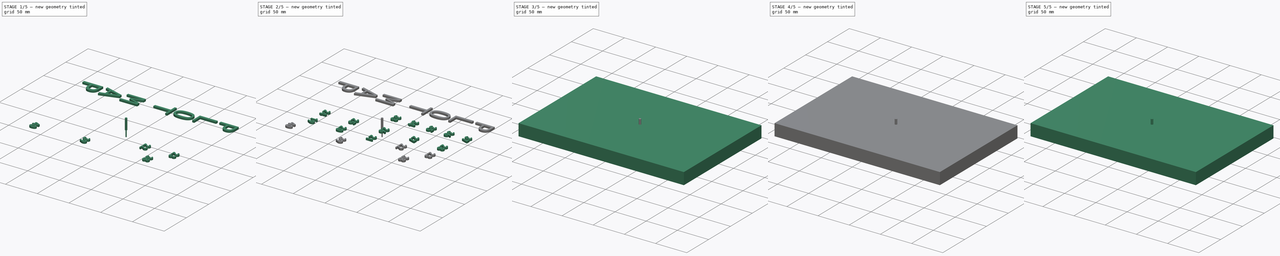
[diagram: build sequence overview — one tinted view per stage of 5, left to right]
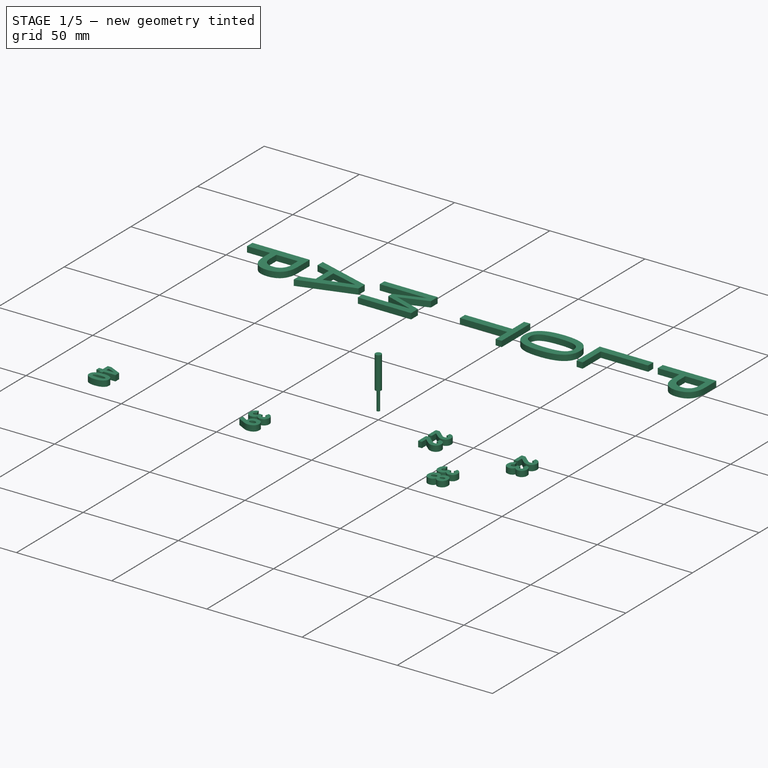
[diagram: stage 1 of 5 — iso view after this stage's code; geometry added in this stage tinted green]
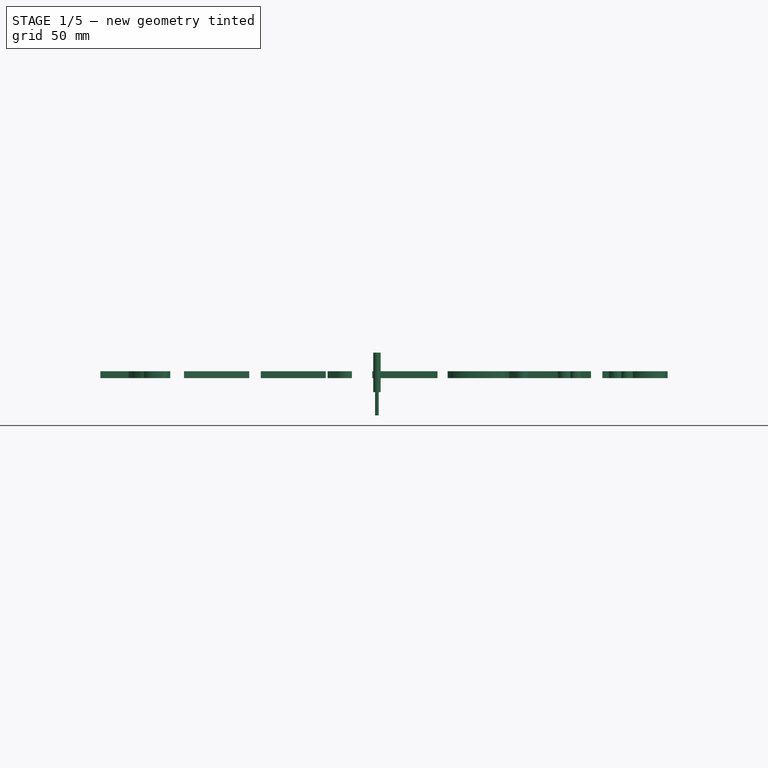
[diagram: stage 1 of 5 — front view after this stage's code; geometry added in this stage tinted green]
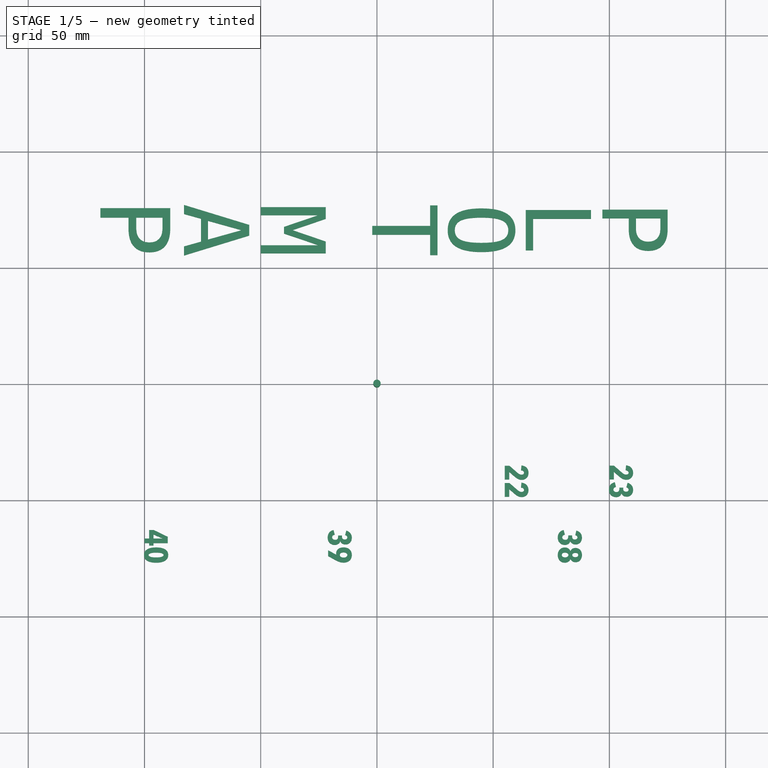
[diagram: stage 1 of 5 — top view after this stage's code; geometry added in this stage tinted green]
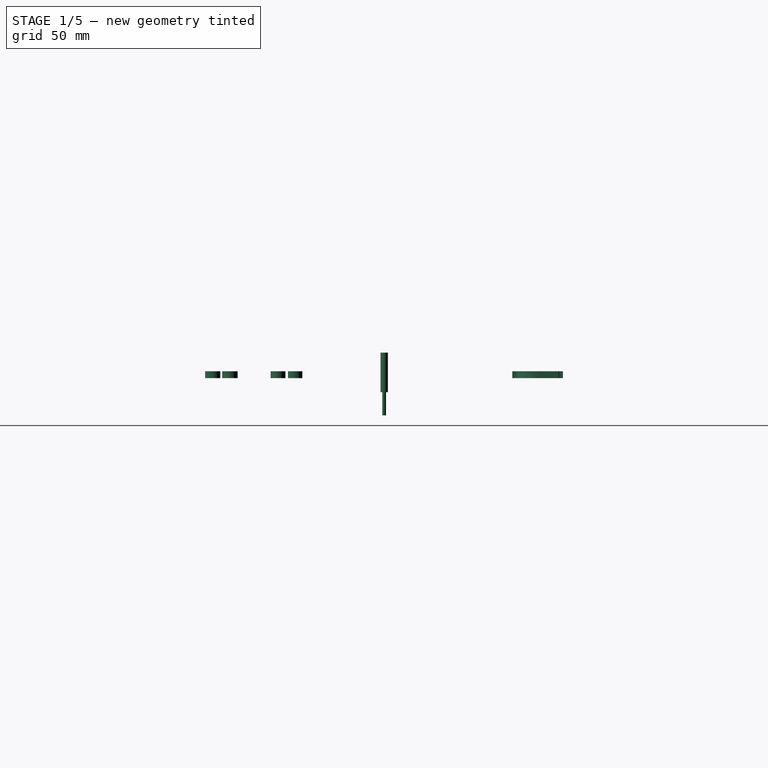
[diagram: stage 1 of 5 — right view after this stage's code; geometry added in this stage tinted green]
FCSTD DOCUMENT  (FreeCAD 0.22R37100 (Git))
Label: juell_bottom_w_title_condensed
License: All rights reserved
LicenseURL: http://en.wikipedia.org/wiki/All_rights_reserved
objects: Part::FeaturePython×30, Path::FeaturePython×30, Part::Part2DObjectPython×29, Part::Extrusion×29, App::DocumentObjectGroup×6, Sketcher::SketchObject×4, PartDesign::Pad×2, PartDesign::Pocket×2, App::FeaturePython×2, Spreadsheet::Sheet×1, PartDesign::Body×1, Part::MultiFuse×1, Part::Cut×1
note: 105 computed .brp shape members not serialized (recipe doc carries the construction recipe); baked Part::Feature solids carry a one-line shape summary decoded from their .brp

FEATURE [Part::Extrusion] Extrude017
  Base = -> ShapeString019
  Dir = (0,0,1)
  DirMode = 2
  FaceMakerClass = Part::FaceMakerBullseye
  LengthFwd = 3
  LengthRev = 0
  Reversed = true
  Solid = true
  Symmetric = false
FEATURE [Part::Extrusion] Extrude018
  Base = -> ShapeString020
  Dir = (0,0,1)
  DirMode = 2
  FaceMakerClass = Part::FaceMakerBullseye
  LengthFwd = 3
  LengthRev = 0
  Reversed = true
  Solid = true
  Symmetric = false
FEATURE [Part::Extrusion] Extrude019
  Base = -> ShapeString021
  Dir = (0,0,1)
  DirMode = 2
  FaceMakerClass = Part::FaceMakerBullseye
  LengthFwd = 3
  LengthRev = 0
  Reversed = true
  Solid = true
  Symmetric = false
FEATURE [Part::Extrusion] Extrude020
  Base = -> ShapeString022
  Dir = (0,0,1)
  DirMode = 2
  FaceMakerClass = Part::FaceMakerBullseye
  LengthFwd = 3
  LengthRev = 0
  Reversed = true
  Solid = true
  Symmetric = false
FEATURE [Part::Extrusion] Extrude021
  Base = -> ShapeString023
  Dir = (0,0,1)
  DirMode = 2
  FaceMakerClass = Part::FaceMakerBullseye
  LengthFwd = 3
  LengthRev = 0
  Reversed = true
  Solid = true
  Symmetric = false
FEATURE [Part::Extrusion] Extrude022
  Base = -> ShapeString024
  Dir = (0,0,1)
  DirMode = 2
  FaceMakerClass = Part::FaceMakerBullseye
  LengthFwd = 3
  LengthRev = 0
  Reversed = true
  Solid = true
  Symmetric = false
FEATURE [Part::Extrusion] Extrude023
  Base = -> ShapeString025
  Dir = (0,0,1)
  DirMode = 2
  FaceMakerClass = Part::FaceMakerBullseye
  LengthFwd = 3
  LengthRev = 0
  Reversed = true
  Solid = true
  Symmetric = false
FEATURE [Part::Extrusion] Extrude024
  Base = -> ShapeString026
  Dir = (0,0,1)
  DirMode = 2
  FaceMakerClass = Part::FaceMakerBullseye
  LengthFwd = 3
  LengthRev = 0
  Reversed = true
  Solid = true
  Symmetric = false
FEATURE [Part::Extrusion] Extrude025
  Base = -> ShapeString027
  Dir = (0,0,1)
  DirMode = 2
  FaceMakerClass = Part::FaceMakerBullseye
  LengthFwd = 3
  LengthRev = 0
  Reversed = true
  Solid = true
  Symmetric = false
FEATURE [Part::Extrusion] Extrude026
  Base = -> ShapeString028
  Dir = (0,0,1)
  DirMode = 2
  FaceMakerClass = Part::FaceMakerBullseye
  LengthFwd = 3
  LengthRev = 0
  Reversed = true
  Solid = true
  Symmetric = false
FEATURE [Part::Extrusion] Extrude027
  Base = -> ShapeString029
  Dir = (0,0,1)
  DirMode = 2
  FaceMakerClass = Part::FaceMakerBullseye
  LengthFwd = 3
  LengthRev = 0
  Reversed = true
  Solid = true
  Symmetric = false
FEATURE [Part::Extrusion] Extrude028
  Base = -> ShapeString030
  Dir = (0,0,1)
  DirMode = 2
  FaceMakerClass = Part::FaceMakerBullseye
  LengthFwd = 3
  LengthRev = 0
  Reversed = true
  Solid = true
  Symmetric = false
FEATURE [Path::FeaturePython] __4mm_Endmill003  label="1.4mm_Endmill004"  # Path/CAM operation (typed FeaturePython)
  HorizFeed = 3.33333
  HorizRapid = 0
  SpindleDir = 0
  SpindleSpeed = 1000
  Tool = -> ToolBit016
  ToolNumber = 5
  VertFeed = 3.33333
  VertRapid = 0
  expr: HorizRapid = SetupSheet001.HorizRapid
  expr: VertRapid = SetupSheet001.VertRapid
FEATURE [Part::FeaturePython] ToolBit017  label="1.6mm_Endmill005"  # Path/CAM toolbit (typed FeaturePython)
  BitPropertyNames = Chipload | CuttingEdgeHeight | Diameter | Flutes | Length | Material | ShankDiameter | SpindleDirection
  BitShape = /private/var/folders/4z/cpn_82wx3qz0m4lfqxz9fps80000gn/T/AppTranslocation/F0985DD4-02AB-45FC-913C-AB543CA37541/d/FreeCAD.app/Contents/Resources/Mod/CAM/Tools/Shape/endmill.fcstd
  Chipload = 0
  CuttingEdgeHeight = 10
  Diameter = 1.6
  Flutes = 0
  Length = 27
  Material = 0
  ShankDiameter = 3.17
  ShapeName = endmill
  SpindleDirection = 0
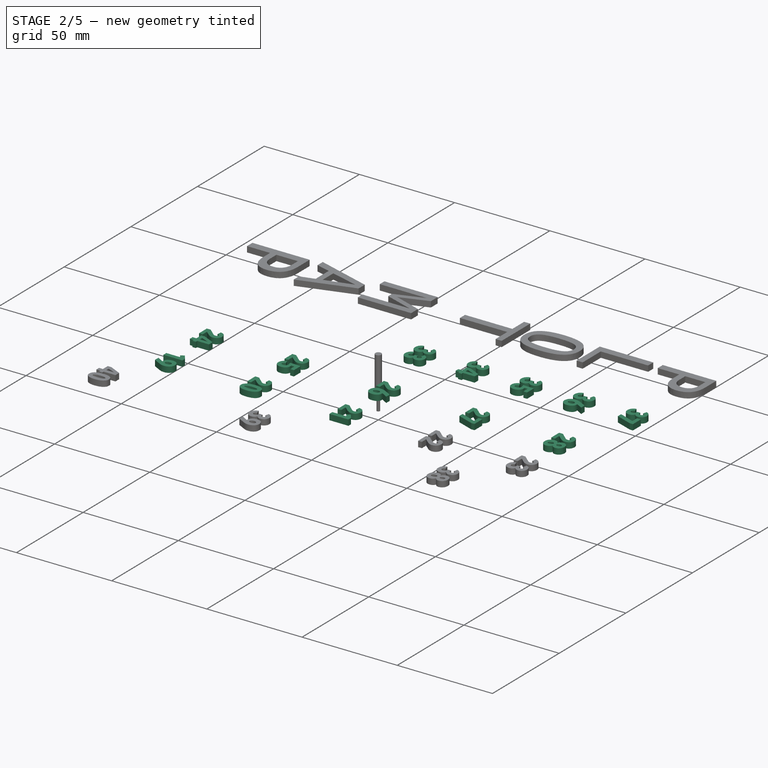
[diagram: stage 2 of 5 — iso view after this stage's code; geometry added in this stage tinted green]
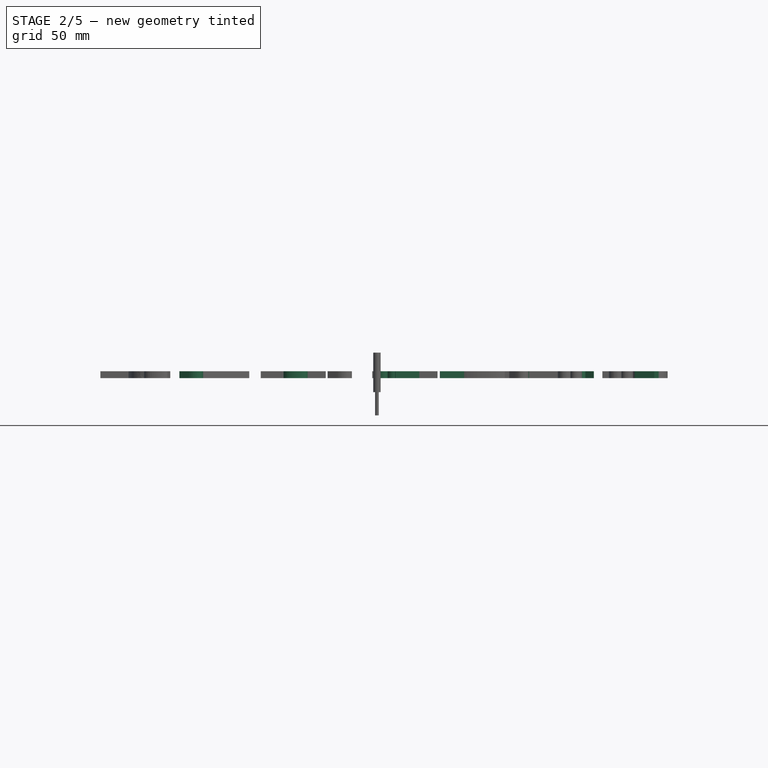
[diagram: stage 2 of 5 — front view after this stage's code; geometry added in this stage tinted green]
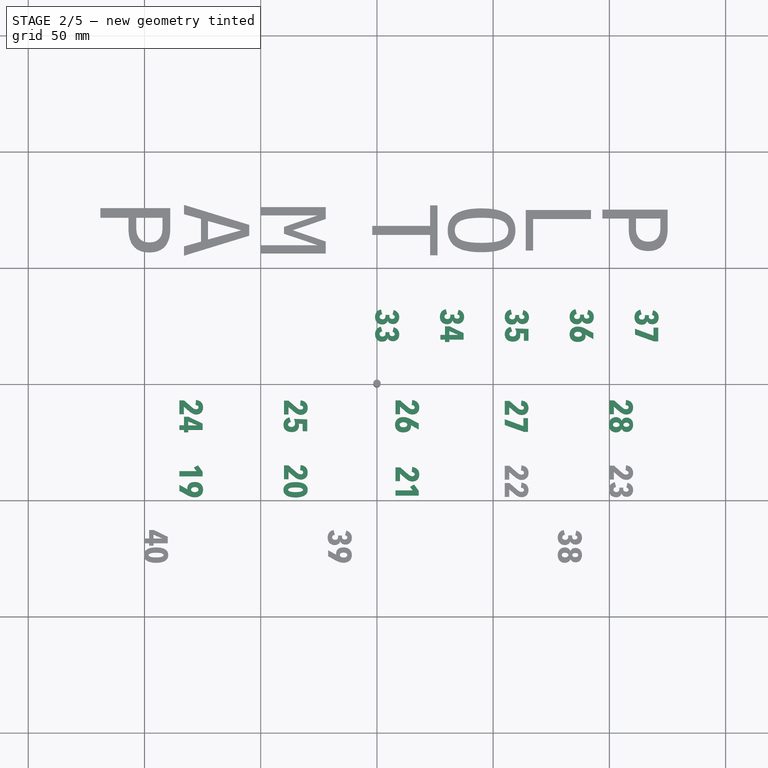
[diagram: stage 2 of 5 — top view after this stage's code; geometry added in this stage tinted green]
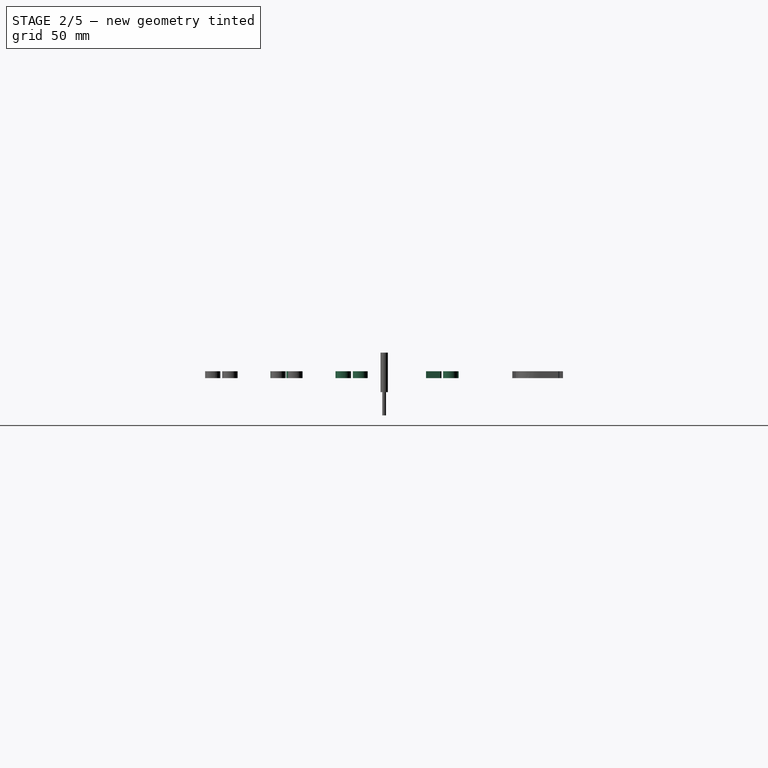
[diagram: stage 2 of 5 — right view after this stage's code; geometry added in this stage tinted green]
FEATURE [Part::Extrusion] Extrude004
  Base = -> ShapeString006
  Dir = (0,0,1)
  DirMode = 2
  FaceMakerClass = Part::FaceMakerBullseye
  LengthFwd = 3
  LengthRev = 0
  Reversed = true
  Solid = true
  Symmetric = false
FEATURE [Part::Extrusion] Extrude005
  Base = -> ShapeString007
  Dir = (0,0,1)
  DirMode = 2
  FaceMakerClass = Part::FaceMakerBullseye
  LengthFwd = 3
  LengthRev = 0
  Reversed = true
  Solid = true
  Symmetric = false
FEATURE [Part::Extrusion] Extrude006
  Base = -> ShapeString008
  Dir = (0,0,1)
  DirMode = 2
  FaceMakerClass = Part::FaceMakerBullseye
  LengthFwd = 3
  LengthRev = 0
  Reversed = true
  Solid = true
  Symmetric = false
FEATURE [Part::Extrusion] Extrude007
  Base = -> ShapeString009
  Dir = (0,0,1)
  DirMode = 2
  FaceMakerClass = Part::FaceMakerBullseye
  LengthFwd = 3
  LengthRev = 0
  Reversed = true
  Solid = true
  Symmetric = false
FEATURE [Part::Extrusion] Extrude008
  Base = -> ShapeString010
  Dir = (0,0,1)
  DirMode = 2
  FaceMakerClass = Part::FaceMakerBullseye
  LengthFwd = 3
  LengthRev = 0
  Reversed = true
  Solid = true
  Symmetric = false
FEATURE [Part::Extrusion] Extrude009
  Base = -> ShapeString011
  Dir = (0,0,1)
  DirMode = 2
  FaceMakerClass = Part::FaceMakerBullseye
  LengthFwd = 3
  LengthRev = 0
  Reversed = true
  Solid = true
  Symmetric = false
FEATURE [Part::Extrusion] Extrude010
  Base = -> ShapeString012
  Dir = (0,0,1)
  DirMode = 2
  FaceMakerClass = Part::FaceMakerBullseye
  LengthFwd = 3
  LengthRev = 0
  Reversed = true
  Solid = true
  Symmetric = false
FEATURE [Part::Extrusion] Extrude011
  Base = -> ShapeString013
  Dir = (0,0,1)
  DirMode = 2
  FaceMakerClass = Part::FaceMakerBullseye
  LengthFwd = 3
  LengthRev = 0
  Reversed = true
  Solid = true
  Symmetric = false
FEATURE [Part::Extrusion] Extrude012
  Base = -> ShapeString014
  Dir = (0,0,1)
  DirMode = 2
  FaceMakerClass = Part::FaceMakerBullseye
  LengthFwd = 3
  LengthRev = 0
  Reversed = true
  Solid = true
  Symmetric = false
FEATURE [Part::Extrusion] Extrude013
  Base = -> ShapeString015
  Dir = (0,0,1)
  DirMode = 2
  FaceMakerClass = Part::FaceMakerBullseye
  LengthFwd = 3
  LengthRev = 0
  Reversed = true
  Solid = true
  Symmetric = false
FEATURE [Part::Extrusion] Extrude014
  Base = -> ShapeString016
  Dir = (0,0,1)
  DirMode = 2
  FaceMakerClass = Part::FaceMakerBullseye
  LengthFwd = 3
  LengthRev = 0
  Reversed = true
  Solid = true
  Symmetric = false
FEATURE [Part::Extrusion] Extrude015
  Base = -> ShapeString017
  Dir = (0,0,1)
  DirMode = 2
  FaceMakerClass = Part::FaceMakerBullseye
  LengthFwd = 3
  LengthRev = 0
  Reversed = true
  Solid = true
  Symmetric = false
FEATURE [Part::Extrusion] Extrude016
  Base = -> ShapeString018
  Dir = (0,0,1)
  DirMode = 2
  FaceMakerClass = Part::FaceMakerBullseye
  LengthFwd = 3
  LengthRev = 0
  Reversed = true
  Solid = true
  Symmetric = false
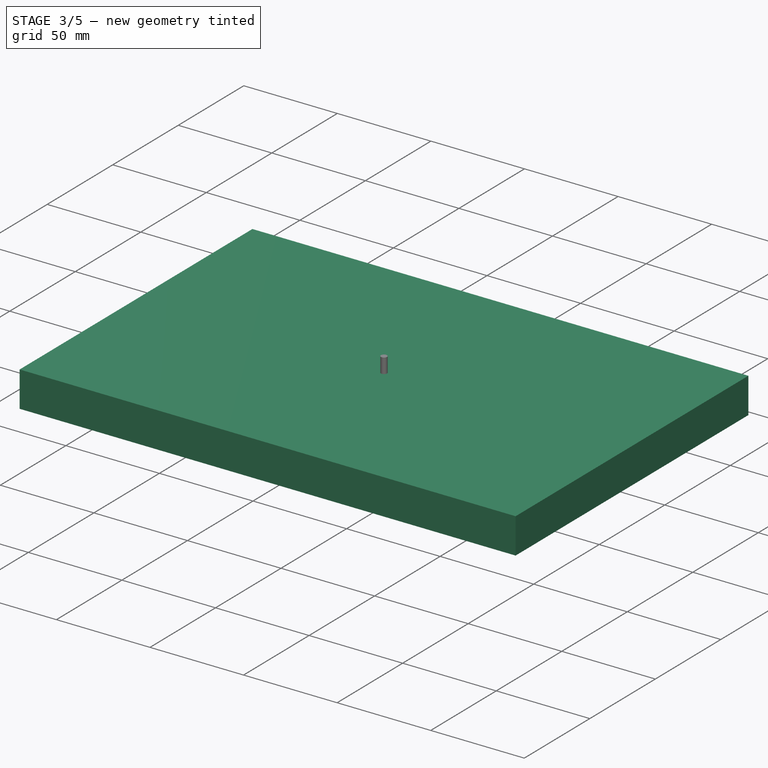
[diagram: stage 3 of 5 — iso view after this stage's code; geometry added in this stage tinted green]
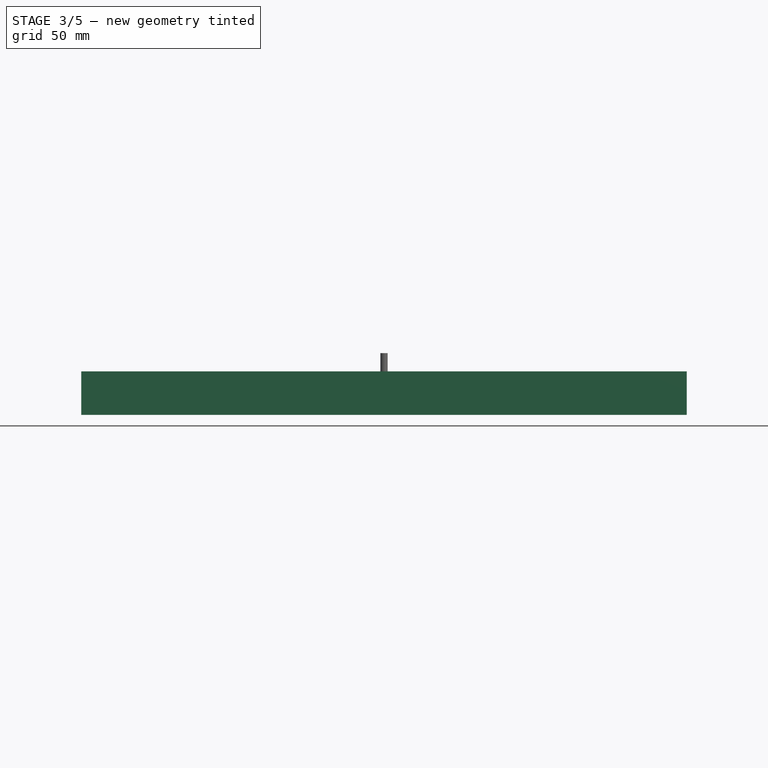
[diagram: stage 3 of 5 — front view after this stage's code; geometry added in this stage tinted green]
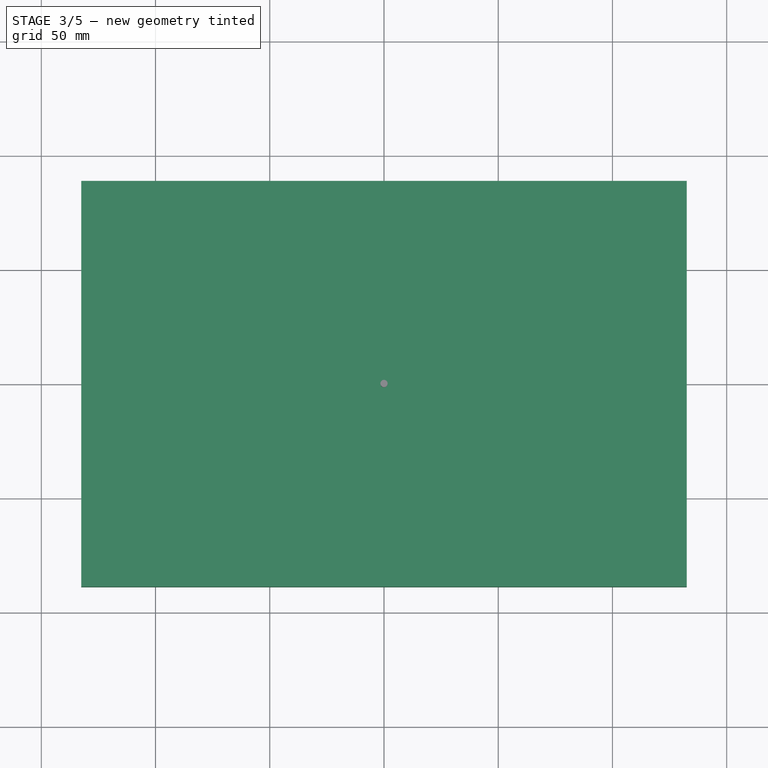
[diagram: stage 3 of 5 — top view after this stage's code; geometry added in this stage tinted green]
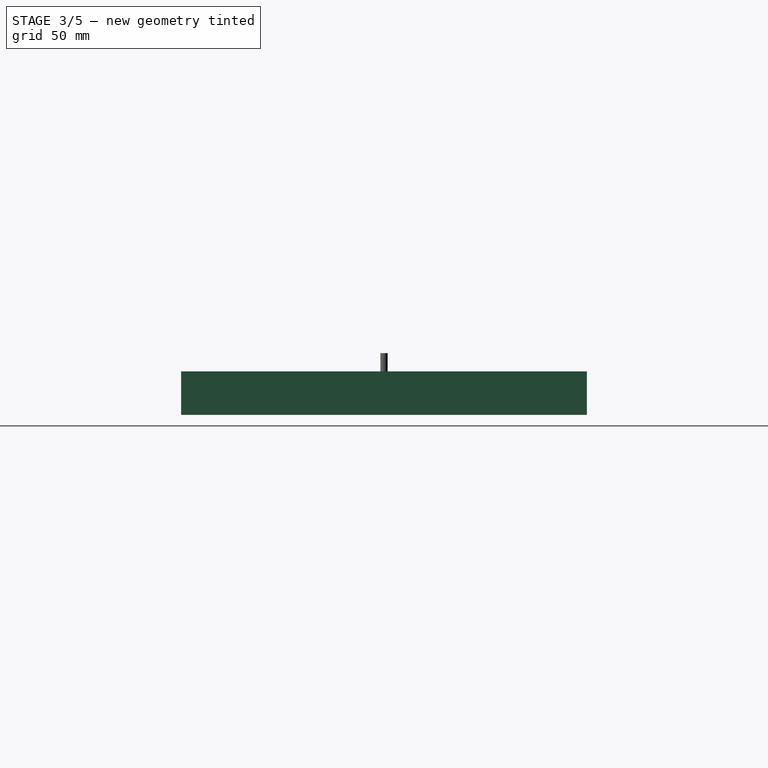
[diagram: stage 3 of 5 — right view after this stage's code; geometry added in this stage tinted green]
FEATURE [Spreadsheet::Sheet] Spreadsheet  label="vars"
  cells = A1='placard; B1(header_width)=30; E1='X; F1='Y; A2='width; B2(width)=263; C2=263; D2=29; E2(x29)==x30 - g1; F2(y29)=25; G2(g1)=27.9; A3='length; B3(length)==border_size + plot_length_wide * 3 + plot_distance * 2.5; C3=158; D3=30; E3(x30)==x31 - g1; F3(y30)==y29; A4='height; B4(height)=19; D4=31; E4(x31)==x32 - g1; F4(y31)==y29; A5='border_size; B5(border_size)=8; D5=32; E5(x32)==x33 - g1; F5(y32)==y29; A6='cut_height; B6(cut_height)=2; D6=33; E6(x33)==x34 - g1; F6(y33)==y29; A7='plot_length_wide; B7(plot_length_wide)=20; C7=55; D7=34; E7(x34)==x35 - g1; F7(y34)==y29; A8='plot_width_wide; B8(plot_width_wide)==plot_length_wide * 2.15; C8==20 * 1.5502; D8=35; E8(x35)==x36 - g1; F8(y35)==y29; A9='plot_length_narrow; B9(plot_length_narrow)==plot_length_wide; C9==200 * 16; D9=36; E9(x36)==x37 - g1; F9(y36)==y29; A10='plot_width_narrow; B10(plot_width_narrow)==plot_width_wide * 2.1; D10=37; E10(x37)=116; F10(y37)==y29; A11='plot_border; B11(plot_border)=2; D11=38; E11(x38)=83; F11(y38)==y40; A12='plot_distance; B12(plot_distance)==plot_distance_short * 2.2; D12=39; E12(x39)=-16; F12(y39)==y40; A13='plot_distance_short; B13(plot_distance_short)=3.6; D13=40; E13(x40)=-95; F13(y40)=-70; A14='font_size; B14(font_size)=10; D14=19; E14(x19)=-80; F14(y19)=-42; A15='font_height; B15(font_height)=2; D15=20; E15(x20)=-35; F15(y20)==y19; A16='plot_border_left; B16(plot_border_left)=50; D16=21; E16(x21)=13; F16(y21)==y19; A17='font orientation; B17(font_orientation)=90; D17=22; E17(x22)=60; F17(y22)==y19; A18='inner short; B18(inner_short)==plot_width_wide - plot_border * 2; D18=23; E18(x23)=105; F18(y23)==y19; A19='inner long; B19(inner_long)==plot_width_narrow - plot_border * 2; D19=24; E19(x24)==x19; F19(y24)=-14; A20='inner end; B20(inner_end)==plot_length_wide - plot_border * 2; D20=25; E20(x25)==x20; F20(y25)==y24; D21=26; E21(x26)==x21; F21(y26)==y24; D22=27; E22(x27)==x22; F22(y27)==y24; D23=28; E23(x28)==x23; F23(y28)==y24
FEATURE [Sketcher::SketchObject] Sketch
  AttachmentSupport = -> [XY_Plane]
  FullyConstrained = true
  MapMode = 5
  expr: Constraints[8] = <<vars>>.length
  expr: Constraints[9] = <<vars>>.width
  sketch-geometry (4):
    g0: LineSegment StartX=-87.8 StartY=-131.5 StartZ=0 EndX=0 EndY=-131.5 EndZ=0
    g1: LineSegment StartX=0 StartY=-131.5 StartZ=0 EndX=0 EndY=131.5 EndZ=0
    g2: LineSegment StartX=0 StartY=131.5 StartZ=0 EndX=-87.8 EndY=131.5 EndZ=0
    g3: LineSegment StartX=-87.8 StartY=131.5 StartZ=0 EndX=-87.8 EndY=-131.5 EndZ=0
  constraints (11):
    c: Coincident(g0,g1)
    c: Coincident(g1,g2)
    c: Coincident(g2,g3)
    c: Coincident(g3,g0)
    c: Horizontal(g0)
    c: Horizontal(g2)
    c: Vertical(g1)
    c: Vertical(g3)
    c: DistanceX(g2,g2) = 87.8
    c: DistanceY(g3,g3) = 263
    c: Symmetric(g1,g0,g-1)
FEATURE [PartDesign::Pad] Pad
  Direction = (0,0,1)
  Length = 19
  Length2 = 10
  Profile = -> Sketch
  ReferenceAxis = -> Sketch [N_Axis]
  Suppressed = false
  Type = 0
  expr: Length = <<vars>>.height
FEATURE [Sketcher::SketchObject] Sketch001
  AttachmentOffset = pos=(0,0,19.01) rot=(0,0,1;0rad)
  AttachmentSupport = -> [Pad]
  ExternalGeometry = -> [Pad]
  FullyConstrained = true
  MapMode = 5
  Placement = pos=(0,0,19.01) rot=(0,0,1;0rad)
  expr: Constraints[100] = <<vars>>.plot_border
  expr: Constraints[101] = <<vars>>.plot_distance
  expr: Constraints[18] = <<vars>>.plot_width_narrow
  expr: Constraints[190] = <<vars>>.plot_distance_short
  expr: Constraints[191] = <<vars>>.plot_distance_short
  expr: Constraints[192] = <<vars>>.plot_distance_short
  expr: Constraints[193] = <<vars>>.plot_distance_short
  expr: Constraints[198] = <<vars>>.plot_distance_short
  expr: Constraints[20] = <<vars>>.plot_length_wide / 2
  expr: Constraints[219] = <<vars>>.plot_border
  expr: Constraints[220] = <<vars>>.plot_border
  expr: Constraints[221] = <<vars>>.plot_distance
  expr: Constraints[22] = <<vars>>.plot_length_wide * 2 + <<vars>>.plot_distance_short
  expr: Constraints[29] = <<vars>>.plot_border
  expr: Constraints[30] = <<vars>>.plot_border
  expr: Constraints[319] = <<vars>>.plot_width_wide
  expr: Constraints[320] = <<vars>>.plot_distance
  expr: Constraints[321] = <<vars>>.plot_distance
  expr: Constraints[323] = <<vars>>.border_size
  expr: Constraints[324] = <<vars>>.border_size
  expr: Constraints[325] = <<vars>>.border_size
  expr: Constraints[37] = <<vars>>.plot_border
  expr: Constraints[38] = <<vars>>.plot_border
  expr: Constraints[39] = <<vars>>.plot_border
  expr: Constraints[40] = <<vars>>.plot_border
  expr: Constraints[41] = <<vars>>.plot_length_narrow
  expr: Constraints[50] = <<vars>>.inner_end
  expr: Constraints[51] = <<vars>>.inner_long
  expr: Constraints[52] = <<vars>>.plot_border
  expr: Constraints[53] = <<vars>>.plot_border
  expr: Constraints[54] = <<vars>>.plot_length_wide
  expr: Constraints[71] = <<vars>>.plot_width_narrow
  expr: Constraints[72] = <<vars>>.inner_long
  expr: Constraints[73] = <<vars>>.plot_length_wide
  expr: Constraints[74] = <<vars>>.inner_end
  expr: Constraints[76] = <<vars>>.plot_border
  expr: Constraints[77] = <<vars>>.plot_border
  expr: Constraints[78] = <<vars>>.plot_distance
  expr: Constraints[95] = <<vars>>.plot_width_wide
  expr: Constraints[96] = <<vars>>.inner_short
  expr: Constraints[97] = <<vars>>.inner_end
  expr: Constraints[98] = <<vars>>.plot_length_wide
  expr: Constraints[99] = <<vars>>.plot_border
  sketch-geometry (108):
    g0: LineSegment StartX=-79.8 StartY=-125.94 StartZ=0 EndX=-59.8 EndY=-125.94 EndZ=0
    g1: LineSegment StartX=-59.8 StartY=-125.94 StartZ=0 EndX=-59.8 EndY=-35.64 EndZ=0
    g2: LineSegment StartX=-59.8 StartY=-35.64 StartZ=0 EndX=-79.8 EndY=-35.64 EndZ=0
    g3: LineSegment StartX=-79.8 StartY=-35.64 StartZ=0 EndX=-79.8 EndY=-125.94 EndZ=0
    g4: LineSegment StartX=-79.8 StartY=70.5 StartZ=0 EndX=-79.8 EndY=123.5 EndZ=0
    g5: LineSegment StartX=-79.8 StartY=123.5 StartZ=0 EndX=-16.2 EndY=123.5 EndZ=0
    g6: LineSegment StartX=-16.2 StartY=123.5 StartZ=0 EndX=-16.2 EndY=113.5 EndZ=0
    g7: LineSegment StartX=-16.2 StartY=113.5 StartZ=0 EndX=-59.8 EndY=113.5 EndZ=0
    g8: LineSegment StartX=-59.8 StartY=113.5 StartZ=0 EndX=-59.8 EndY=70.5 EndZ=0
    g9: LineSegment StartX=-59.8 StartY=70.5 StartZ=0 EndX=-79.8 EndY=70.5 EndZ=0
    g10: LineSegment StartX=-18.2 StartY=121.5 StartZ=0 EndX=-77.8 EndY=121.5 EndZ=0
    g11: LineSegment StartX=-77.8 StartY=121.5 StartZ=0 EndX=-77.8 EndY=72.5 EndZ=0
    g12: LineSegment StartX=-77.8 StartY=72.5 StartZ=0 EndX=-61.8 EndY=72.5 EndZ=0
    g13: LineSegment StartX=-61.8 StartY=72.5 StartZ=0 EndX=-61.8 EndY=115.5 EndZ=0
    g14: LineSegment StartX=-61.8 StartY=115.5 StartZ=0 EndX=-18.2 EndY=115.5 EndZ=0
    g15: LineSegment StartX=-18.2 StartY=115.5 StartZ=0 EndX=-18.2 EndY=121.5 EndZ=0
    g16: LineSegment StartX=-77.8 StartY=-37.64 StartZ=0 EndX=-77.8 EndY=-123.94 EndZ=0
    g17: LineSegment StartX=-77.8 StartY=-123.94 StartZ=0 EndX=-61.8 EndY=-123.94 EndZ=0
    g18: LineSegment StartX=-61.8 StartY=-123.94 StartZ=0 EndX=-61.8 EndY=-37.64 EndZ=0
    g19: LineSegment StartX=-61.8 StartY=-37.64 StartZ=0 EndX=-77.8 EndY=-37.64 EndZ=0
    g20: LineSegment StartX=-79.8 StartY=62.58 StartZ=0 EndX=-79.8 EndY=-27.72 EndZ=0
    g21: LineSegment StartX=-79.8 StartY=-27.72 StartZ=0 EndX=-59.8 EndY=-27.72 EndZ=0
    g22: LineSegment StartX=-59.8 StartY=-27.72 StartZ=0 EndX=-59.8 EndY=62.58 EndZ=0
    g23: LineSegment StartX=-59.8 StartY=62.58 StartZ=0 EndX=-79.8 EndY=62.58 EndZ=0
    g24: LineSegment StartX=-61.8 StartY=-25.72 StartZ=0 EndX=-61.8 EndY=60.58 EndZ=0
    g25: LineSegment StartX=-61.8 StartY=60.58 StartZ=0 EndX=-77.8 EndY=60.58 EndZ=0
    g26: LineSegment StartX=-77.8 StartY=60.58 StartZ=0 EndX=-77.8 EndY=-25.72 EndZ=0
    g27: LineSegment StartX=-77.8 StartY=-25.72 StartZ=0 EndX=-61.8 EndY=-25.72 EndZ=0
    g28: LineSegment StartX=-51.88 StartY=-125.94 StartZ=0 EndX=-31.88 EndY=-125.94 EndZ=0
    g29: LineSegment StartX=-31.88 StartY=-125.94 StartZ=0 EndX=-31.88 EndY=-82.94 EndZ=0
    g30: LineSegment StartX=-31.88 StartY=-82.94 StartZ=0 EndX=-51.88 EndY=-82.94 EndZ=0
    g31: LineSegment StartX=-51.88 StartY=-82.94 StartZ=0 EndX=-51.88 EndY=-125.94 EndZ=0
    g32: LineSegment StartX=-33.88 StartY=-84.94 StartZ=0 EndX=-49.88 EndY=-84.94 EndZ=0
    g33: LineSegment StartX=-49.88 StartY=-84.94 StartZ=0 EndX=-49.88 EndY=-123.94 EndZ=0
    g34: LineSegment StartX=-49.88 StartY=-123.94 StartZ=0 EndX=-33.88 EndY=-123.94 EndZ=0
    g35: LineSegment StartX=-33.88 StartY=-123.94 StartZ=0 EndX=-33.88 EndY=-84.94 EndZ=0
    g36: LineSegment StartX=-51.88 StartY=-79.34 StartZ=0 EndX=-31.88 EndY=-79.34 EndZ=0
    g37: LineSegment StartX=-31.88 StartY=-79.34 StartZ=0 EndX=-31.88 EndY=-36.34 EndZ=0
    g38: LineSegment StartX=-31.88 StartY=-36.34 StartZ=0 EndX=-51.88 EndY=-36.34 EndZ=0
    g39: LineSegment StartX=-51.88 StartY=-36.34 StartZ=0 EndX=-51.88 EndY=-79.34 EndZ=0
    g40: LineSegment StartX=-33.88 StartY=-38.34 StartZ=0 EndX=-49.88 EndY=-38.34 EndZ=0
    g41: LineSegment StartX=-49.88 StartY=-38.34 StartZ=0 EndX=-49.88 EndY=-77.34 EndZ=0
    g42: LineSegment StartX=-49.88 StartY=-77.34 StartZ=0 EndX=-33.88 EndY=-77.34 EndZ=0
    g43: LineSegment StartX=-33.88 StartY=-77.34 StartZ=0 EndX=-33.88 EndY=-38.34 EndZ=0
    g44: LineSegment StartX=-51.88 StartY=-32.74 StartZ=0 EndX=-31.88 EndY=-32.74 EndZ=0
    g45: LineSegment StartX=-31.88 StartY=-32.74 StartZ=0 EndX=-31.88 EndY=10.26 EndZ=0
    g46: LineSegment StartX=-31.88 StartY=10.26 StartZ=0 EndX=-51.88 EndY=10.26 EndZ=0
    g47: LineSegment StartX=-51.88 StartY=10.26 StartZ=0 EndX=-51.88 EndY=-32.74 EndZ=0
    g48: LineSegment StartX=-33.88 StartY=8.26 StartZ=0 EndX=-49.88 EndY=8.26 EndZ=0
    g49: LineSegment StartX=-49.88 StartY=8.26 StartZ=0 EndX=-49.88 EndY=-30.74 EndZ=0
    g50: LineSegment StartX=-49.88 StartY=-30.74 StartZ=0 EndX=-33.88 EndY=-30.74 EndZ=0
    g51: LineSegment StartX=-33.88 StartY=-30.74 StartZ=0 EndX=-33.88 EndY=8.26 EndZ=0
    g52: LineSegment StartX=-51.88 StartY=13.86 StartZ=0 EndX=-31.88 EndY=13.86 EndZ=0
    g53: LineSegment StartX=-31.88 StartY=13.86 StartZ=0 EndX=-31.88 EndY=56.86 EndZ=0
    g54: LineSegment StartX=-31.88 StartY=56.86 StartZ=0 EndX=-51.88 EndY=56.86 EndZ=0
    g55: LineSegment StartX=-51.88 StartY=56.86 StartZ=0 EndX=-51.88 EndY=13.86 EndZ=0
    g56: LineSegment StartX=-33.88 StartY=54.86 StartZ=0 EndX=-49.88 EndY=54.86 EndZ=0
    g57: LineSegment StartX=-49.88 StartY=54.86 StartZ=0 EndX=-49.88 EndY=15.86 EndZ=0
    g58: LineSegment StartX=-49.88 StartY=15.86 StartZ=0 EndX=-33.88 EndY=15.86 EndZ=0
    g59: LineSegment StartX=-33.88 StartY=15.86 StartZ=0 EndX=-33.88 EndY=54.86 EndZ=0
    g60: LineSegment StartX=-51.88 StartY=60.46 StartZ=0 EndX=-31.88 EndY=60.46 EndZ=0
    g61: LineSegment StartX=-31.88 StartY=60.46 StartZ=0 EndX=-31.88 EndY=103.46 EndZ=0
    g62: LineSegment StartX=-31.88 StartY=103.46 StartZ=0 EndX=-51.88 EndY=103.46 EndZ=0
    g63: LineSegment StartX=-51.88 StartY=103.46 StartZ=0 EndX=-51.88 EndY=60.46 EndZ=0
    g64: LineSegment StartX=-33.88 StartY=101.46 StartZ=0 EndX=-49.88 EndY=101.46 EndZ=0
    g65: LineSegment StartX=-49.88 StartY=101.46 StartZ=0 EndX=-49.88 EndY=62.46 EndZ=0
    g66: LineSegment StartX=-49.88 StartY=62.46 StartZ=0 EndX=-33.88 EndY=62.46 EndZ=0
    g67: LineSegment StartX=-33.88 StartY=62.46 StartZ=0 EndX=-33.88 EndY=101.46 EndZ=0
    g68: LineSegment StartX=-23.96 StartY=-82.94 StartZ=0 EndX=-23.96 EndY=-125.94 EndZ=0
    g69: LineSegment StartX=-23.96 StartY=-125.94 StartZ=0 EndX=-3.96 EndY=-125.94 EndZ=0
    g70: LineSegment StartX=-3.96 StartY=-125.94 StartZ=0 EndX=-3.96 EndY=-82.94 EndZ=0
    g71: LineSegment StartX=-3.96 StartY=-82.94 StartZ=0 EndX=-23.96 EndY=-82.94 EndZ=0
    g72: LineSegment StartX=-5.96 StartY=-123.94 StartZ=0 EndX=-5.96 EndY=-84.94 EndZ=0
    g73: LineSegment StartX=-5.96 StartY=-84.94 StartZ=0 EndX=-21.96 EndY=-84.94 EndZ=0
    g74: LineSegment StartX=-21.96 StartY=-84.94 StartZ=0 EndX=-21.96 EndY=-123.94 EndZ=0
    g75: LineSegment StartX=-21.96 StartY=-123.94 StartZ=0 EndX=-5.96 EndY=-123.94 EndZ=0
    g76: LineSegment StartX=-23.96 StartY=-36.34 StartZ=0 EndX=-23.96 EndY=-79.34 EndZ=0
    g77: LineSegment StartX=-23.96 StartY=-79.34 StartZ=0 EndX=-3.96 EndY=-79.34 EndZ=0
    g78: LineSegment StartX=-3.96 StartY=-79.34 StartZ=0 EndX=-3.96 EndY=-36.34 EndZ=0
    g79: LineSegment StartX=-3.96 StartY=-36.34 StartZ=0 EndX=-23.96 EndY=-36.34 EndZ=0
    g80: LineSegment StartX=-5.96 StartY=-77.34 StartZ=0 EndX=-5.96 EndY=-38.34 EndZ=0
    g81: LineSegment StartX=-5.96 StartY=-38.34 StartZ=0 EndX=-21.96 EndY=-38.34 EndZ=0
    g82: LineSegment StartX=-21.96 StartY=-38.34 StartZ=0 EndX=-21.96 EndY=-77.34 EndZ=0
    g83: LineSegment StartX=-21.96 StartY=-77.34 StartZ=0 EndX=-5.96 EndY=-77.34 EndZ=0
    g84: LineSegment StartX=-23.96 StartY=10.26 StartZ=0 EndX=-23.96 EndY=-32.74 EndZ=0
    g85: LineSegment StartX=-23.96 StartY=-32.74 StartZ=0 EndX=-3.96 EndY=-32.74 EndZ=0
    g86: LineSegment StartX=-3.96 StartY=-32.74 StartZ=0 EndX=-3.96 EndY=10.26 EndZ=0
    g87: LineSegment StartX=-3.96 StartY=10.26 StartZ=0 EndX=-23.96 EndY=10.26 EndZ=0
    g88: LineSegment StartX=-5.96 StartY=-30.74 StartZ=0 EndX=-5.96 EndY=8.26 EndZ=0
    g89: LineSegment StartX=-5.96 StartY=8.26 StartZ=0 EndX=-21.96 EndY=8.26 EndZ=0
    g90: LineSegment StartX=-21.96 StartY=8.26 StartZ=0 EndX=-21.96 EndY=-30.74 EndZ=0
    g91: LineSegment StartX=-21.96 StartY=-30.74 StartZ=0 EndX=-5.96 EndY=-30.74 EndZ=0
    g92: LineSegment StartX=-23.96 StartY=56.86 StartZ=0 EndX=-23.96 EndY=13.86 EndZ=0
    g93: LineSegment StartX=-23.96 StartY=13.86 StartZ=0 EndX=-3.96 EndY=13.86 EndZ=0
    g94: LineSegment StartX=-3.96 StartY=13.86 StartZ=0 EndX=-3.96 EndY=56.86 EndZ=0
    g95: LineSegment StartX=-3.96 StartY=56.86 StartZ=0 EndX=-23.96 EndY=56.86 EndZ=0
    g96: LineSegment StartX=-5.96 StartY=15.86 StartZ=0 EndX=-5.96 EndY=54.86 EndZ=0
    g97: LineSegment StartX=-5.96 StartY=54.86 StartZ=0 EndX=-21.96 EndY=54.86 EndZ=0
    g98: LineSegment StartX=-21.96 StartY=54.86 StartZ=0 EndX=-21.96 EndY=15.86 EndZ=0
    g99: LineSegment StartX=-21.96 StartY=15.86 StartZ=0 EndX=-5.96 EndY=15.86 EndZ=0
    g100: LineSegment StartX=-23.96 StartY=103.46 StartZ=0 EndX=-23.96 EndY=60.46 EndZ=0
    g101: LineSegment StartX=-23.96 StartY=60.46 StartZ=0 EndX=-3.96 EndY=60.46 EndZ=0
    g102: LineSegment StartX=-3.96 StartY=60.46 StartZ=0 EndX=-3.96 EndY=103.46 EndZ=0
    g103: LineSegment StartX=-3.96 StartY=103.46 StartZ=0 EndX=-23.96 EndY=103.46 EndZ=0
    g104: LineSegment StartX=-5.96 StartY=62.46 StartZ=0 EndX=-5.96 EndY=101.46 EndZ=0
    g105: LineSegment StartX=-5.96 StartY=101.46 StartZ=0 EndX=-21.96 EndY=101.46 EndZ=0
    g106: LineSegment StartX=-21.96 StartY=101.46 StartZ=0 EndX=-21.96 EndY=62.46 EndZ=0
    g107: LineSegment StartX=-21.96 StartY=62.46 StartZ=0 EndX=-5.96 EndY=62.46 EndZ=0
  constraints (326):
    c: Coincident(g0,g1)
    c: Coincident(g1,g2)
    c: Coincident(g2,g3)
    c: Coincident(g3,g0)
    c: Horizontal(g0)
    c: Horizontal(g2)
    c: Vertical(g1)
    c: Vertical(g3)
    c: Coincident(g4,g5)
    c: Coincident(g5,g6)
    c: Coincident(g6,g7)
    c: Coincident(g7,g8)
    c: Coincident(g8,g9)
    c: Coincident(g9,g4)
    c: Vertical(g4)
    c: Vertical(g8)
    c: Horizontal(g7)
    c: Vertical(g6)
    c: DistanceY(g3,g3) = 90.3
    c: Horizontal(g9)
    c: DistanceY(g6,g6) = 10
    c: Horizontal(g5)
    c: DistanceX(g7,g7) = 43.6
    c: Coincident(g10,g11)
    c: Coincident(g11,g12)
    c: Coincident(g12,g13)
    c: Coincident(g13,g14)
    c: Coincident(g14,g15)
    c: Coincident(g15,g10)
    c: DistanceX(g4,g10) = 2
    c: DistanceY(g10,g4) = 2
    c: Horizontal(g10)
    c: Vertical(g11)
    c: Horizontal(g14)
    c: Vertical(g13)
    c: Horizontal(g12)
    c: Vertical(g15)
    c: DistanceX(g12,g8) = 2
    c: DistanceY(g8,g12) = 2
    c: DistanceX(g14,g6) = 2
    c: DistanceY(g6,g14) = 2
    c: DistanceX(g2,g2) = 20
    c: Coincident(g16,g17)
    c: Coincident(g17,g18)
    c: Coincident(g18,g19)
    c: Coincident(g19,g16)
    c: Vertical(g16)
    c: Vertical(g18)
    c: Horizontal(g17)
    c: Horizontal(g19)
    c: DistanceX(g17,g17) = 16
    c: DistanceY(g16,g16) = 86.3
    c: DistanceY(g0,g17) = 2
    c: DistanceX(g2,g16) = 2
    c: DistanceX(g9,g9) = 20
    c: Coincident(g20,g21)
    c: Coincident(g21,g22)
    c: Coincident(g22,g23)
    c: Coincident(g23,g20)
    c: Vertical(g20)
    c: Vertical(g22)
    c: Horizontal(g21)
    c: Horizontal(g23)
    c: Coincident(g24,g25)
    c: Coincident(g25,g26)
    c: Coincident(g26,g27)
    c: Coincident(g27,g24)
    c: Vertical(g24)
    c: Vertical(g26)
    c: Horizontal(g25)
    c: Horizontal(g27)
    c: DistanceY(g20,g20) = 90.3
    c: DistanceY(g26,g26) = 86.3
    c: DistanceX(g23,g23) = 20
    c: DistanceX(g25,g25) = 16
    c: Vertical(g2,g20)
    c: DistanceX(g20,g25) = 2
    c: DistanceY(g21,g24) = 2
    c: DistanceY(g2,g20) = 7.92
    c: Coincident(g28,g29)
    c: Coincident(g29,g30)
    c: Coincident(g30,g31)
    c: Coincident(g31,g28)
    c: Horizontal(g28)
    c: Horizontal(g30)
    c: Vertical(g29)
    c: Vertical(g31)
    c: Coincident(g32,g33)
    c: Coincident(g33,g34)
    c: Coincident(g34,g35)
    c: Coincident(g35,g32)
    c: Horizontal(g32)
    c: Horizontal(g34)
    c: Vertical(g33)
    c: Vertical(g35)
    c: DistanceY(g31,g31) = 43
    c: DistanceY(g33,g33) = 39
    c: DistanceX(g32,g32) = 16
    c: DistanceX(g30,g30) = 20
    c: DistanceX(g30,g32) = 2
    c: DistanceY(g28,g34) = 2
    c: DistanceX(g0,g28) = 7.92
    c: Coincident(g36,g37)
    c: Coincident(g44,g45)
    c: Coincident(g52,g53)
    c: Coincident(g60,g61)
    c: Coincident(g37,g38)
    c: Coincident(g45,g46)
    c: Coincident(g53,g54)
    c: Coincident(g61,g62)
    c: Coincident(g38,g39)
    c: Coincident(g46,g47)
    c: Coincident(g54,g55)
    c: Coincident(g62,g63)
    c: Coincident(g39,g36)
    c: Coincident(g47,g44)
    c: Coincident(g55,g52)
    c: Coincident(g63,g60)
    c: Horizontal(g36)
    c: Horizontal(g44)
    c: Horizontal(g52)
    c: Horizontal(g60)
    c: Horizontal(g38)
    c: Horizontal(g46)
    c: Horizontal(g54)
    c: Horizontal(g62)
    c: Vertical(g37)
    c: Vertical(g45)
    c: Vertical(g53)
    c: Vertical(g61)
    c: Vertical(g39)
    c: Vertical(g47)
    c: Vertical(g55)
    c: Vertical(g63)
    c: Coincident(g40,g41)
    c: Coincident(g48,g49)
    c: Coincident(g56,g57)
    c: Coincident(g64,g65)
    c: Coincident(g41,g42)
    c: Coincident(g49,g50)
    c: Coincident(g57,g58)
    c: Coincident(g65,g66)
    c: Coincident(g42,g43)
    c: Coincident(g50,g51)
    c: Coincident(g58,g59)
    c: Coincident(g66,g67)
    c: Coincident(g43,g40)
    c: Coincident(g51,g48)
    c: Coincident(g59,g56)
    c: Coincident(g67,g64)
    c: Horizontal(g40)
    c: Horizontal(g48)
    c: Horizontal(g56)
    c: Horizontal(g64)
    c: Horizontal(g42)
    c: Horizontal(g50)
    c: Horizontal(g58)
    c: Horizontal(g66)
    c: Vertical(g41)
    c: Vertical(g49)
    c: Vertical(g57)
    c: Vertical(g65)
    c: Vertical(g43)
    c: Vertical(g51)
    c: Vertical(g59)
    c: Vertical(g67)
    c: Equal(g31,g39)
    c: Equal(g31,g47)
    c: Equal(g31,g55)
    c: Equal(g31,g63)
    c: Equal(g33,g41)
    c: Equal(g33,g49)
    c: Equal(g33,g57)
    c: Equal(g33,g65)
    c: Equal(g32,g40)
    c: Equal(g32,g48)
    c: Equal(g32,g56)
    c: Equal(g32,g64)
    c: Equal(g30,g38)
    c: Equal(g30,g46)
    c: Equal(g30,g54)
    c: Equal(g30,g62)
    c: DistanceX(g38,g40) = 2
    c: DistanceX(g46,g48) = 2
    c: DistanceX(g54,g56) = 2
    c: DistanceX(g62,g64) = 2
    c: DistanceY(g36,g42) = 2
    c: DistanceY(g44,g50) = 2
    c: DistanceY(g52,g58) = 2
    c: DistanceY(g60,g66) = 2
    c: DistanceY(g54,g60) = 3.6
    c: DistanceY(g62,g7) = 3.6
    c: DistanceY(g46,g52) = 3.6
    c: DistanceY(g38,g44) = 3.6
    c: Vertical(g30,g38)
    c: Vertical(g38,g46)
    c: Vertical(g46,g54)
    c: Vertical(g54,g62)
    c: DistanceY(g30,g36) = 3.6
    c: Coincident(g68,g69)
    c: Coincident(g69,g70)
    c: Coincident(g70,g71)
    c: Coincident(g71,g68)
    c: Vertical(g68)
    c: Vertical(g70)
    c: Horizontal(g69)
    c: Horizontal(g71)
    c: Coincident(g72,g73)
    c: Coincident(g73,g74)
    c: Coincident(g74,g75)
    c: Coincident(g75,g72)
    c: Vertical(g72)
    c: Vertical(g74)
    c: Horizontal(g73)
    c: Horizontal(g75)
    c: Equal(g29,g68)
    c: Equal(g30,g71)
    c: Equal(g73,g32)
    c: Equal(g35,g74)
    c: DistanceX(g68,g73) = 2
    c: DistanceY(g69,g72) = 2
    c: DistanceX(g28,g68) = 7.92
    c: Coincident(g76,g77)
    c: Coincident(g84,g85)
    c: Coincident(g92,g93)
    c: Coincident(g100,g101)
    c: Coincident(g77,g78)
    c: Coincident(g85,g86)
    c: Coincident(g93,g94)
    c: Coincident(g101,g102)
    c: Coincident(g78,g79)
    c: Coincident(g86,g87)
    c: Coincident(g94,g95)
    c: Coincident(g102,g103)
    c: Coincident(g79,g76)
    c: Coincident(g87,g84)
    c: Coincident(g95,g92)
    c: Coincident(g103,g100)
    c: Vertical(g76)
    c: Vertical(g84)
    c: Vertical(g92)
    c: Vertical(g100)
    c: Vertical(g78)
    c: Vertical(g86)
    c: Vertical(g94)
    c: Vertical(g102)
    c: Horizontal(g77)
    c: Horizontal(g85)
    c: Horizontal(g93)
    c: Horizontal(g101)
    c: Horizontal(g79)
    c: Horizontal(g87)
    c: Horizontal(g95)
    c: Horizontal(g103)
    c: Coincident(g80,g81)
    c: Coincident(g88,g89)
    c: Coincident(g96,g97)
    c: Coincident(g104,g105)
    c: Coincident(g81,g82)
    c: Coincident(g89,g90)
    c: Coincident(g97,g98)
    c: Coincident(g105,g106)
    c: Coincident(g82,g83)
    c: Coincident(g90,g91)
    c: Coincident(g98,g99)
    c: Coincident(g106,g107)
    c: Coincident(g83,g80)
    c: Coincident(g91,g88)
    c: Coincident(g99,g96)
    c: Coincident(g107,g104)
    c: Vertical(g80)
    c: Vertical(g88)
    c: Vertical(g96)
    c: Vertical(g104)
    c: Vertical(g82)
    c: Vertical(g90)
    c: Vertical(g98)
    c: Vertical(g106)
    c: Horizontal(g81)
    c: Horizontal(g89)
    c: Horizontal(g97)
    c: Horizontal(g105)
    c: Horizontal(g83)
    c: Horizontal(g91)
    c: Horizontal(g99)
    c: Horizontal(g107)
    c: DistanceX(g76,g81) = 2
    c: DistanceX(g84,g89) = 2
    c: DistanceX(g92,g97) = 2
    c: DistanceX(g100,g105) = 2
    c: DistanceY(g77,g80) = 2
    c: DistanceY(g85,g88) = 2
    c: DistanceY(g93,g96) = 2
    c: DistanceY(g101,g104) = 2
    c: Horizontal(g28,g69)
    c: Vertical(g68,g76)
    c: Vertical(g76,g84)
    c: Vertical(g84,g92)
    c: Vertical(g92,g100)
    c: Horizontal(g36,g76)
    c: Equal(g36,g77)
    c: Equal(g77,g85)
    c: Equal(g85,g93)
    c: Equal(g93,g101)
    c: Equal(g66,g107)
    c: Equal(g107,g99)
    c: Equal(g99,g91)
    c: Equal(g91,g83)
    c: Equal(g37,g76)
    c: Equal(g76,g84)
    c: Equal(g84,g92)
    c: Equal(g43,g82)
    c: Equal(g82,g90)
    c: Equal(g90,g98)
    c: Equal(g98,g106)
    c: Equal(g61,g100)
    c: Horizontal(g44,g84)
    c: Horizontal(g52,g92)
    c: Horizontal(g60,g100)
    c: DistanceY(g8,g8) = 43
    c: DistanceY(g20,g4) = 7.92
    c: DistanceY(g62,g7) = 7.92
    c: Horizontal(g28,g0)
    c: DistanceY(g4,g-3) = 8
    c: DistanceX(g-3,g4) = 8
    c: DistanceX(g-3,g20) = 8
FEATURE [Part::Part2DObjectPython] ShapeString  label="Plot29"  # Draft 2D object (typed FeaturePython)
  FontFile = /System/Library/Fonts/Avenir Next Condensed.ttc
  Fuse = false
  Justification = 4
  JustificationReference = 0
  KeepLeftMargin = false
  MakeFace = true
  ObliqueAngle = 0
  Placement = pos=(-107.2,25,19.01) rot=(0,0,-1;1.5708rad)
  ScaleToSize = true
  Size = 10
  String = 29
  Tracking = 0
  expr: .Placement.Base.x = <<vars>>.x29
  expr: .Placement.Base.y = <<vars>>.y29
  expr: .Placement.Base.z = <<vars>>.height + 0.01
  expr: .Placement.Rotation.Angle = <<vars>>.font_orientation
  expr: Size = <<vars>>.font_size
FEATURE [Part::Part2DObjectPython] ShapeString003  label="Plot30"  # Draft 2D object (typed FeaturePython)
  FontFile = /System/Library/Fonts/Avenir Next Condensed.ttc
  Fuse = false
  Justification = 4
  JustificationReference = 0
  KeepLeftMargin = false
  MakeFace = true
  ObliqueAngle = 0
  Placement = pos=(-79.3,25,19.01) rot=(0,0,-1;1.5708rad)
  ScaleToSize = true
  Size = 10
  String = 30
  Tracking = 0
  expr: .Placement.Base.x = <<vars>>.x30
  expr: .Placement.Base.y = <<vars>>.y30
  expr: .Placement.Base.z = <<vars>>.height + 0.01
  expr: .Placement.Rotation.Angle = <<vars>>.font_orientation
  expr: Size = <<vars>>.font_size
FEATURE [Part::Part2DObjectPython] ShapeString004  label="Plot31"  # Draft 2D object (typed FeaturePython)
  FontFile = /System/Library/Fonts/Avenir Next Condensed.ttc
  Fuse = false
  Justification = 4
  JustificationReference = 0
  KeepLeftMargin = false
  MakeFace = true
  ObliqueAngle = 0
  Placement = pos=(-51.4,25,19.01) rot=(0,0,-1;1.5708rad)
  ScaleToSize = true
  Size = 10
  String = 31
  Tracking = 0
  expr: .Placement.Base.x = <<vars>>.x31
  expr: .Placement.Base.y = <<vars>>.y31
  expr: .Placement.Base.z = <<vars>>.height + 0.01
  expr: .Placement.Rotation.Angle = <<vars>>.font_orientation
  expr: Size = <<vars>>.font_size
FEATURE [Part::Part2DObjectPython] ShapeString005  label="Plot32"  # Draft 2D object (typed FeaturePython)
  FontFile = /System/Library/Fonts/Avenir Next Condensed.ttc
  Fuse = false
  Justification = 4
  JustificationReference = 0
  KeepLeftMargin = false
  MakeFace = true
  ObliqueAngle = 0
  Placement = pos=(-23.5,25,19.01) rot=(0,0,-1;1.5708rad)
  ScaleToSize = true
  Size = 10
  String = 32
  Tracking = 0
  expr: .Placement.Base.x = <<vars>>.x32
  expr: .Placement.Base.y = <<vars>>.y32
  expr: .Placement.Base.z = <<vars>>.height + 0.01
  expr: .Placement.Rotation.Angle = <<vars>>.font_orientation
  expr: Size = <<vars>>.font_size
FEATURE [Part::Part2DObjectPython] ShapeString006  label="Plot33"  # Draft 2D object (typed FeaturePython)
  FontFile = /System/Library/Fonts/Avenir Next Condensed.ttc
  Fuse = false
  Justification = 4
  JustificationReference = 0
  KeepLeftMargin = false
  MakeFace = true
  ObliqueAngle = 0
  Placement = pos=(4.4,25,19.01) rot=(0,0,-1;1.5708rad)
  ScaleToSize = true
  Size = 10
  String = 33
  Tracking = 0
  expr: .Placement.Base.x = <<vars>>.x33
  expr: .Placement.Base.y = <<vars>>.y33
  expr: .Placement.Base.z = <<vars>>.height + 0.01
  expr: .Placement.Rotation.Angle = <<vars>>.font_orientation
  expr: Size = <<vars>>.font_size
FEATURE [Part::Part2DObjectPython] ShapeString007  label="Plot34"  # Draft 2D object (typed FeaturePython)
  FontFile = /System/Library/Fonts/Avenir Next Condensed.ttc
  Fuse = false
  Justification = 4
  JustificationReference = 0
  KeepLeftMargin = false
  MakeFace = true
  ObliqueAngle = 0
  Placement = pos=(32.3,25,19.01) rot=(0,0,-1;1.5708rad)
  ScaleToSize = true
  Size = 10
  String = 34
  Tracking = 0
  expr: .Placement.Base.x = <<vars>>.x34
  expr: .Placement.Base.y = <<vars>>.y34
  expr: .Placement.Base.z = <<vars>>.height + 0.01
  expr: .Placement.Rotation.Angle = <<vars>>.font_orientation
  expr: Size = <<vars>>.font_size
FEATURE [Part::Part2DObjectPython] ShapeString008  label="Plot35"  # Draft 2D object (typed FeaturePython)
  FontFile = /System/Library/Fonts/Avenir Next Condensed.ttc
  Fuse = false
  Justification = 4
  JustificationReference = 0
  KeepLeftMargin = false
  MakeFace = true
  ObliqueAngle = 0
  Placement = pos=(60.2,25,19.01) rot=(0,0,-1;1.5708rad)
  ScaleToSize = true
  Size = 10
  String = 35
  Tracking = 0
  expr: .Placement.Base.x = <<vars>>.x35
  expr: .Placement.Base.y = <<vars>>.y35
  expr: .Placement.Base.z = <<vars>>.height + 0.01
  expr: .Placement.Rotation.Angle = <<vars>>.font_orientation
  expr: Size = <<vars>>.font_size
FEATURE [Part::Part2DObjectPython] ShapeString009  label="Plot36"  # Draft 2D object (typed FeaturePython)
  FontFile = /System/Library/Fonts/Avenir Next Condensed.ttc
  Fuse = false
  Justification = 4
  JustificationReference = 0
  KeepLeftMargin = false
  MakeFace = true
  ObliqueAngle = 0
  Placement = pos=(88.1,25,19.01) rot=(0,0,-1;1.5708rad)
  ScaleToSize = true
  Size = 10
  String = 36
  Tracking = 0
  expr: .Placement.Base.x = <<vars>>.x36
  expr: .Placement.Base.y = <<vars>>.y36
  expr: .Placement.Base.z = <<vars>>.height + 0.01
  expr: .Placement.Rotation.Angle = <<vars>>.font_orientation
  expr: Size = <<vars>>.font_size
FEATURE [Part::Part2DObjectPython] ShapeString010  label="Plot37"  # Draft 2D object (typed FeaturePython)
  FontFile = /System/Library/Fonts/Avenir Next Condensed.ttc
  Fuse = false
  Justification = 4
  JustificationReference = 0
  KeepLeftMargin = false
  MakeFace = true
  ObliqueAngle = 0
  Placement = pos=(116,25,19.01) rot=(0,0,-1;1.5708rad)
  ScaleToSize = true
  Size = 10
  String = 37
  Tracking = 0
  expr: .Placement.Base.x = <<vars>>.x37
  expr: .Placement.Base.y = <<vars>>.y37
  expr: .Placement.Base.z = <<vars>>.height + 0.01
  expr: .Placement.Rotation.Angle = <<vars>>.font_orientation
  expr: Size = <<vars>>.font_size
FEATURE [Part::Part2DObjectPython] ShapeString011  label="Plot28"  # Draft 2D object (typed FeaturePython)
  FontFile = /System/Library/Fonts/Avenir Next Condensed.ttc
  Fuse = false
  Justification = 4
  JustificationReference = 0
  KeepLeftMargin = false
  MakeFace = true
  ObliqueAngle = 0
  Placement = pos=(105,-14,19.01) rot=(0,0,-1;1.5708rad)
  ScaleToSize = true
  Size = 10
  String = 28
  Tracking = 0
  expr: .Placement.Base.x = <<vars>>.x28
  expr: .Placement.Base.y = <<vars>>.y28
  expr: .Placement.Base.z = <<vars>>.height + 0.01
  expr: .Placement.Rotation.Angle = <<vars>>.font_orientation
  expr: Size = <<vars>>.font_size
FEATURE [Part::Part2DObjectPython] ShapeString012  label="Plot27"  # Draft 2D object (typed FeaturePython)
  FontFile = /System/Library/Fonts/Avenir Next Condensed.ttc
  Fuse = false
  Justification = 4
  JustificationReference = 0
  KeepLeftMargin = false
  MakeFace = true
  ObliqueAngle = 0
  Placement = pos=(60,-14,19.01) rot=(0,0,-1;1.5708rad)
  ScaleToSize = true
  Size = 10
  String = 27
  Tracking = 0
  expr: .Placement.Base.x = <<vars>>.x27
  expr: .Placement.Base.y = <<vars>>.y27
  expr: .Placement.Base.z = <<vars>>.height + 0.01
  expr: .Placement.Rotation.Angle = <<vars>>.font_orientation
  expr: Size = <<vars>>.font_size
FEATURE [Part::Part2DObjectPython] ShapeString013  label="Plot26"  # Draft 2D object (typed FeaturePython)
  FontFile = /System/Library/Fonts/Avenir Next Condensed.ttc
  Fuse = false
  Justification = 4
  JustificationReference = 0
  KeepLeftMargin = false
  MakeFace = true
  ObliqueAngle = 0
  Placement = pos=(13,-14,19.01) rot=(0,0,-1;1.5708rad)
  ScaleToSize = true
  Size = 10
  String = 26
  Tracking = 0
  expr: .Placement.Base.x = <<vars>>.x26
  expr: .Placement.Base.y = <<vars>>.y26
  expr: .Placement.Base.z = <<vars>>.height + 0.01
  expr: .Placement.Rotation.Angle = <<vars>>.font_orientation
  expr: Size = <<vars>>.font_size
FEATURE [Part::Part2DObjectPython] ShapeString014  label="Plot25"  # Draft 2D object (typed FeaturePython)
  FontFile = /System/Library/Fonts/Avenir Next Condensed.ttc
  Fuse = false
  Justification = 4
  JustificationReference = 0
  KeepLeftMargin = false
  MakeFace = true
  ObliqueAngle = 0
  Placement = pos=(-35,-14,19.01) rot=(0,0,-1;1.5708rad)
  ScaleToSize = true
  Size = 10
  String = 25
  Tracking = 0
  expr: .Placement.Base.x = <<vars>>.x25
  expr: .Placement.Base.y = <<vars>>.y25
  expr: .Placement.Base.z = <<vars>>.height + 0.01
  expr: .Placement.Rotation.Angle = <<vars>>.font_orientation
  expr: Size = <<vars>>.font_size
FEATURE [Part::Part2DObjectPython] ShapeString015  label="Plot24"  # Draft 2D object (typed FeaturePython)
  FontFile = /System/Library/Fonts/Avenir Next Condensed.ttc
  Fuse = false
  Justification = 4
  JustificationReference = 0
  KeepLeftMargin = false
  MakeFace = true
  ObliqueAngle = 0
  Placement = pos=(-80,-14,19.01) rot=(0,0,-1;1.5708rad)
  ScaleToSize = true
  Size = 10
  String = 24
  Tracking = 0
  expr: .Placement.Base.x = <<vars>>.x24
  expr: .Placement.Base.y = <<vars>>.y24
  expr: .Placement.Base.z = <<vars>>.height + 0.01
  expr: .Placement.Rotation.Angle = <<vars>>.font_orientation
  expr: Size = <<vars>>.font_size
FEATURE [Part::Part2DObjectPython] ShapeString016  label="Plot19"  # Draft 2D object (typed FeaturePython)
  FontFile = /System/Library/Fonts/Avenir Next Condensed.ttc
  Fuse = false
  Justification = 4
  JustificationReference = 0
  KeepLeftMargin = false
  MakeFace = true
  ObliqueAngle = 0
  Placement = pos=(-80,-42,19.01) rot=(0,0,-1;1.5708rad)
  ScaleToSize = true
  Size = 10
  String = 19
  Tracking = 0
  expr: .Placement.Base.x = <<vars>>.x19
  expr: .Placement.Base.y = <<vars>>.y19
  expr: .Placement.Base.z = <<vars>>.height + 0.01
  expr: .Placement.Rotation.Angle = <<vars>>.font_orientation
  expr: Size = <<vars>>.font_size
FEATURE [Part::Part2DObjectPython] ShapeString017  label="Plot20"  # Draft 2D object (typed FeaturePython)
  FontFile = /System/Library/Fonts/Avenir Next Condensed.ttc
  Fuse = false
  Justification = 4
  JustificationReference = 0
  KeepLeftMargin = false
  MakeFace = true
  ObliqueAngle = 0
  Placement = pos=(-35,-42,19.01) rot=(0,0,-1;1.5708rad)
  ScaleToSize = true
  Size = 10
  String = 20
  Tracking = 0
  expr: .Placement.Base.x = <<vars>>.x20
  expr: .Placement.Base.y = <<vars>>.y20
  expr: .Placement.Base.z = <<vars>>.height + 0.01
  expr: .Placement.Rotation.Angle = <<vars>>.font_orientation
  expr: Size = <<vars>>.font_size
FEATURE [Part::Part2DObjectPython] ShapeString018  label="Plot21"  # Draft 2D object (typed FeaturePython)
  FontFile = /System/Library/Fonts/Avenir Next Condensed.ttc
  Fuse = false
  Justification = 4
  JustificationReference = 0
  KeepLeftMargin = false
  MakeFace = true
  ObliqueAngle = 0
  Placement = pos=(13,-42,19.01) rot=(0,0,-1;1.5708rad)
  ScaleToSize = true
  Size = 10
  String = 21
  Tracking = 0
  expr: .Placement.Base.x = <<vars>>.x21
  expr: .Placement.Base.y = <<vars>>.y21
  expr: .Placement.Base.z = <<vars>>.height + 0.01
  expr: .Placement.Rotation.Angle = <<vars>>.font_orientation
  expr: Size = <<vars>>.font_size
FEATURE [Part::Part2DObjectPython] ShapeString019  label="Plot22"  # Draft 2D object (typed FeaturePython)
  FontFile = /System/Library/Fonts/Avenir Next Condensed.ttc
  Fuse = false
  Justification = 4
  JustificationReference = 0
  KeepLeftMargin = false
  MakeFace = true
  ObliqueAngle = 0
  Placement = pos=(60,-42,19.01) rot=(0,0,-1;1.5708rad)
  ScaleToSize = true
  Size = 10
  String = 22
  Tracking = 0
  expr: .Placement.Base.x = <<vars>>.x22
  expr: .Placement.Base.y = <<vars>>.y22
  expr: .Placement.Base.z = <<vars>>.height + 0.01
  expr: .Placement.Rotation.Angle = <<vars>>.font_orientation
  expr: Size = <<vars>>.font_size
FEATURE [Part::Part2DObjectPython] ShapeString020  label="Plot23"  # Draft 2D object (typed FeaturePython)
  FontFile = /System/Library/Fonts/Avenir Next Condensed.ttc
  Fuse = false
  Justification = 4
  JustificationReference = 0
  KeepLeftMargin = false
  MakeFace = true
  ObliqueAngle = 0
  Placement = pos=(105,-42,19.01) rot=(0,0,-1;1.5708rad)
  ScaleToSize = true
  Size = 10
  String = 23
  Tracking = 0
  expr: .Placement.Base.x = <<vars>>.x23
  expr: .Placement.Base.y = <<vars>>.y23
  expr: .Placement.Base.z = <<vars>>.height + 0.01
  expr: .Placement.Rotation.Angle = <<vars>>.font_orientation
  expr: Size = <<vars>>.font_size
FEATURE [Part::Part2DObjectPython] ShapeString021  label="Plot38"  # Draft 2D object (typed FeaturePython)
  FontFile = /System/Library/Fonts/Avenir Next Condensed.ttc
  Fuse = false
  Justification = 4
  JustificationReference = 0
  KeepLeftMargin = false
  MakeFace = true
  ObliqueAngle = 0
  Placement = pos=(83,-70,19.01) rot=(0,0,-1;1.5708rad)
  ScaleToSize = true
  Size = 10
  String = 38
  Tracking = 0
  expr: .Placement.Base.x = <<vars>>.x38
  expr: .Placement.Base.y = <<vars>>.y38
  expr: .Placement.Base.z = <<vars>>.height + 0.01
  expr: .Placement.Rotation.Angle = <<vars>>.font_orientation
  expr: Size = <<vars>>.font_size
FEATURE [Part::Part2DObjectPython] ShapeString022  label="Plot39"  # Draft 2D object (typed FeaturePython)
  FontFile = /System/Library/Fonts/Avenir Next Condensed.ttc
  Fuse = false
  Justification = 4
  JustificationReference = 0
  KeepLeftMargin = false
  MakeFace = true
  ObliqueAngle = 0
  Placement = pos=(-16,-70,19.01) rot=(0,0,-1;1.5708rad)
  ScaleToSize = true
  Size = 10
  String = 39
  Tracking = 0
  expr: .Placement.Base.x = <<vars>>.x39
  expr: .Placement.Base.y = <<vars>>.y39
  expr: .Placement.Base.z = <<vars>>.height + 0.01
  expr: .Placement.Rotation.Angle = <<vars>>.font_orientation
  expr: Size = <<vars>>.font_size
FEATURE [Part::Part2DObjectPython] ShapeString023  label="Plot40"  # Draft 2D object (typed FeaturePython)
  FontFile = /System/Library/Fonts/Avenir Next Condensed.ttc
  Fuse = false
  Justification = 4
  JustificationReference = 0
  KeepLeftMargin = false
  MakeFace = true
  ObliqueAngle = 0
  Placement = pos=(-95,-70,19.01) rot=(0,0,-1;1.5708rad)
  ScaleToSize = true
  Size = 10
  String = 40
  Tracking = 0
  expr: .Placement.Base.x = <<vars>>.x40
  expr: .Placement.Base.y = <<vars>>.y40
  expr: .Placement.Base.z = <<vars>>.height + 0.01
  expr: .Placement.Rotation.Angle = 90
  expr: Size = <<vars>>.font_size
FEATURE [Sketcher::SketchObject] Sketch002
  AttachmentSupport = -> [XY_Plane]
  ExternalGeometry = -> [Pad]
  FullyConstrained = true
  MapMode = 5
  expr: Constraints[8] = <<vars>>.width
  expr: Constraints[9] = <<vars>>.length
  sketch-geometry (4):
    g0: LineSegment StartX=0 StartY=-131.5 StartZ=0 EndX=87.8 EndY=-131.5 EndZ=0
    g1: LineSegment StartX=87.8 StartY=-131.5 StartZ=0 EndX=87.8 EndY=131.5 EndZ=0
    g2: LineSegment StartX=87.8 StartY=131.5 StartZ=0 EndX=0 EndY=131.5 EndZ=0
    g3: LineSegment StartX=0 StartY=131.5 StartZ=0 EndX=0 EndY=-131.5 EndZ=0
  constraints (11):
    c: Coincident(g0,g1)
    c: Coincident(g1,g2)
    c: Coincident(g2,g3)
    c: Coincident(g3,g0)
    c: Horizontal(g0)
    c: Horizontal(g2)
    c: Vertical(g1)
    c: Vertical(g3)
    c: DistanceY(g3,g3) = 263
    c: DistanceX(g2,g2) = 87.8
    c: Coincident(g2,g-3)
FEATURE [Part::Part2DObjectPython] ShapeString024  label="P1"  # Draft 2D object (typed FeaturePython)
  FontFile = /System/Library/Fonts/Menlo.ttc
  Fuse = false
  Justification = 4
  JustificationReference = 0
  KeepLeftMargin = false
  MakeFace = true
  ObliqueAngle = 0
  Placement = pos=(111,66,19.01) rot=(0,0,-1;1.5708rad)
  ScaleToSize = true
  Size = 28
  String = P
  Tracking = 0
  expr: .Placement.Base.x = ShapeString025.Placement.Base.x + ShapeString025.Size + 5 mm
FEATURE [Part::Part2DObjectPython] ShapeString025  label="L"  # Draft 2D object (typed FeaturePython)
  FontFile = /System/Library/Fonts/Menlo.ttc
  Fuse = false
  Justification = 4
  JustificationReference = 0
  KeepLeftMargin = false
  MakeFace = true
  ObliqueAngle = 0
  Placement = pos=(78,66,19.01) rot=(0,0,-1;1.5708rad)
  ScaleToSize = true
  Size = 28
  String = L
  Tracking = 0
  expr: .Placement.Base.x = ShapeString026.Placement.Base.x + ShapeString026.Size + 5 mm
FEATURE [Part::Part2DObjectPython] ShapeString026  label="O"  # Draft 2D object (typed FeaturePython)
  FontFile = /System/Library/Fonts/Menlo.ttc
  Fuse = false
  Justification = 4
  JustificationReference = 0
  KeepLeftMargin = false
  MakeFace = true
  ObliqueAngle = 0
  Placement = pos=(45,66,19.01) rot=(0,0,-1;1.5708rad)
  ScaleToSize = true
  Size = 28
  String = O
  Tracking = 0
  expr: .Placement.Base.x = ShapeString027.Placement.Base.x + ShapeString027.Size + 5 mm
FEATURE [Part::Part2DObjectPython] ShapeString027  label="T"  # Draft 2D object (typed FeaturePython)
  FontFile = /System/Library/Fonts/Menlo.ttc
  Fuse = false
  Justification = 4
  JustificationReference = 0
  KeepLeftMargin = false
  MakeFace = true
  ObliqueAngle = 0
  Placement = pos=(12,66,19.01) rot=(0,0,-1;1.5708rad)
  ScaleToSize = true
  Size = 28
  String = T
  Tracking = 0
  expr: .Placement.Base.x = ShapeString028.Placement.Base.x + ShapeString028.Size + 20 mm
FEATURE [Part::Part2DObjectPython] ShapeString028  label="M"  # Draft 2D object (typed FeaturePython)
  FontFile = /System/Library/Fonts/Menlo.ttc
  Fuse = false
  Justification = 4
  JustificationReference = 0
  KeepLeftMargin = false
  MakeFace = true
  ObliqueAngle = 0
  Placement = pos=(-36,66,19.01) rot=(0,0,-1;1.5708rad)
  ScaleToSize = true
  Size = 28
  String = M
  Tracking = 0
  expr: .Placement.Base.x = ShapeString029.Placement.Base.x + ShapeString029.Size + 5 mm
FEATURE [Part::Part2DObjectPython] ShapeString029  label="A"  # Draft 2D object (typed FeaturePython)
  FontFile = /System/Library/Fonts/Menlo.ttc
  Fuse = false
  Justification = 4
  JustificationReference = 0
  KeepLeftMargin = false
  MakeFace = true
  ObliqueAngle = 0
  Placement = pos=(-69,66,19.01) rot=(0,0,-1;1.5708rad)
  ScaleToSize = true
  Size = 28
  String = A
  Tracking = 0
  expr: .Placement.Base.x = ShapeString030.Placement.Base.x + <<P2>>.Size + 5 mm
FEATURE [Part::Part2DObjectPython] ShapeString030  label="P2"  # Draft 2D object (typed FeaturePython)
  FontFile = /System/Library/Fonts/Menlo.ttc
  Fuse = false
  Justification = 4
  JustificationReference = 0
  KeepLeftMargin = false
  MakeFace = true
  ObliqueAngle = 0
  Placement = pos=(-104,66,19.01) rot=(0,0,-1;1.5708rad)
  ScaleToSize = true
  Size = 30
  String = P
  Tracking = 0
FEATURE [PartDesign::Pocket] Pocket
  BaseFeature = -> Pad
  Direction = (0,0,-1)
  Length = 2
  Length2 = 5
  Profile = -> Sketch001
  ReferenceAxis = -> Sketch001 [N_Axis]
  Suppressed = false
  Type = 0
FEATURE [PartDesign::Pad] Pad001
  BaseFeature = -> Pocket
  Direction = (0,0,1)
  Length = 19
  Length2 = 10
  Profile = -> Sketch002
  ReferenceAxis = -> Sketch002 [N_Axis]
  Suppressed = false
  Type = 0
  expr: Length = <<vars>>.height
FEATURE [Sketcher::SketchObject] Sketch003
  AttachmentOffset = pos=(0,0,19.01) rot=(0,0,1;0rad)
  AttachmentSupport = -> [Sketch002,Pad001]
  ExternalGeometry = -> [Pad001]
  FullyConstrained = true
  MapMode = 5
  Placement = pos=(0,0,19.01) rot=(0,0,1;0rad)
  expr: Constraints[16] = <<vars>>.plot_length_wide
  expr: Constraints[17] = <<vars>>.plot_length_wide - <<vars>>.plot_border * 2
  expr: Constraints[18] = <<vars>>.plot_width_wide
  expr: Constraints[198] = <<vars>>.plot_distance
  expr: Constraints[199] = <<vars>>.plot_distance
  expr: Constraints[19] = <<vars>>.plot_width_wide - <<vars>>.plot_border * 2
  expr: Constraints[200] = <<vars>>.plot_distance
  expr: Constraints[201] = <<vars>>.plot_distance
  expr: Constraints[202] = <<vars>>.plot_distance
  expr: Constraints[203] = <<vars>>.plot_distance
  expr: Constraints[204] = <<vars>>.plot_distance
  expr: Constraints[209] = <<vars>>.plot_distance
  expr: Constraints[20] = <<vars>>.plot_border
  expr: Constraints[214] = <<vars>>.plot_distance_short
  expr: Constraints[21] = <<vars>>.plot_border
  sketch-geometry (72):
    g0: LineSegment StartX=3.6 StartY=-125.94 StartZ=0 EndX=46.6 EndY=-125.94 EndZ=0
    g1: LineSegment StartX=46.6 StartY=-125.94 StartZ=0 EndX=46.6 EndY=-105.94 EndZ=0
    g2: LineSegment StartX=46.6 StartY=-105.94 StartZ=0 EndX=3.6 EndY=-105.94 EndZ=0
    g3: LineSegment StartX=3.6 StartY=-105.94 StartZ=0 EndX=3.6 EndY=-125.94 EndZ=0
    g4: LineSegment StartX=44.6 StartY=-107.94 StartZ=0 EndX=5.6 EndY=-107.94 EndZ=0
    g5: LineSegment StartX=5.6 StartY=-107.94 StartZ=0 EndX=5.6 EndY=-123.94 EndZ=0
    g6: LineSegment StartX=5.6 StartY=-123.94 StartZ=0 EndX=44.6 EndY=-123.94 EndZ=0
    g7: LineSegment StartX=44.6 StartY=-123.94 StartZ=0 EndX=44.6 EndY=-107.94 EndZ=0
    g8: LineSegment StartX=3.6 StartY=-98.02 StartZ=0 EndX=46.6 EndY=-98.02 EndZ=0
    g9: LineSegment StartX=46.6 StartY=-98.02 StartZ=0 EndX=46.6 EndY=-78.02 EndZ=0
    g10: LineSegment StartX=46.6 StartY=-78.02 StartZ=0 EndX=3.6 EndY=-78.02 EndZ=0
    g11: LineSegment StartX=3.6 StartY=-78.02 StartZ=0 EndX=3.6 EndY=-98.02 EndZ=0
    g12: LineSegment StartX=44.6 StartY=-80.02 StartZ=0 EndX=5.6 EndY=-80.02 EndZ=0
    g13: LineSegment StartX=5.6 StartY=-80.02 StartZ=0 EndX=5.6 EndY=-96.02 EndZ=0
    g14: LineSegment StartX=5.6 StartY=-96.02 StartZ=0 EndX=44.6 EndY=-96.02 EndZ=0
    g15: LineSegment StartX=44.6 StartY=-96.02 StartZ=0 EndX=44.6 EndY=-80.02 EndZ=0
    g16: LineSegment StartX=3.6 StartY=-70.1 StartZ=0 EndX=46.6 EndY=-70.1 EndZ=0
    g17: LineSegment StartX=46.6 StartY=-70.1 StartZ=0 EndX=46.6 EndY=-50.1 EndZ=0
    g18: LineSegment StartX=46.6 StartY=-50.1 StartZ=0 EndX=3.6 EndY=-50.1 EndZ=0
    g19: LineSegment StartX=3.6 StartY=-50.1 StartZ=0 EndX=3.6 EndY=-70.1 EndZ=0
    g20: LineSegment StartX=44.6 StartY=-52.1 StartZ=0 EndX=5.6 EndY=-52.1 EndZ=0
    g21: LineSegment StartX=5.6 StartY=-52.1 StartZ=0 EndX=5.6 EndY=-68.1 EndZ=0
    g22: LineSegment StartX=5.6 StartY=-68.1 StartZ=0 EndX=44.6 EndY=-68.1 EndZ=0
    g23: LineSegment StartX=44.6 StartY=-68.1 StartZ=0 EndX=44.6 EndY=-52.1 EndZ=0
    g24: LineSegment StartX=3.6 StartY=-42.18 StartZ=0 EndX=46.6 EndY=-42.18 EndZ=0
    g25: LineSegment StartX=46.6 StartY=-42.18 StartZ=0 EndX=46.6 EndY=-22.18 EndZ=0
    g26: LineSegment StartX=46.6 StartY=-22.18 StartZ=0 EndX=3.6 EndY=-22.18 EndZ=0
    g27: LineSegment StartX=3.6 StartY=-22.18 StartZ=0 EndX=3.6 EndY=-42.18 EndZ=0
    g28: LineSegment StartX=44.6 StartY=-24.18 StartZ=0 EndX=5.6 EndY=-24.18 EndZ=0
    g29: LineSegment StartX=5.6 StartY=-24.18 StartZ=0 EndX=5.6 EndY=-40.18 EndZ=0
    g30: LineSegment StartX=5.6 StartY=-40.18 StartZ=0 EndX=44.6 EndY=-40.18 EndZ=0
    g31: LineSegment StartX=44.6 StartY=-40.18 StartZ=0 EndX=44.6 EndY=-24.18 EndZ=0
    g32: LineSegment StartX=3.6 StartY=-14.26 StartZ=0 EndX=46.6 EndY=-14.26 EndZ=0
    g33: LineSegment StartX=46.6 StartY=-14.26 StartZ=0 EndX=46.6 EndY=5.74 EndZ=0
    g34: LineSegment StartX=46.6 StartY=5.74 StartZ=0 EndX=3.6 EndY=5.74 EndZ=0
    g35: LineSegment StartX=3.6 StartY=5.74 StartZ=0 EndX=3.6 EndY=-14.26 EndZ=0
    g36: LineSegment StartX=44.6 StartY=3.74 StartZ=0 EndX=5.6 EndY=3.74 EndZ=0
    g37: LineSegment StartX=5.6 StartY=3.74 StartZ=0 EndX=5.6 EndY=-12.26 EndZ=0
    g38: LineSegment StartX=5.6 StartY=-12.26 StartZ=0 EndX=44.6 EndY=-12.26 EndZ=0
    g39: LineSegment StartX=44.6 StartY=-12.26 StartZ=0 EndX=44.6 EndY=3.74 EndZ=0
    g40: LineSegment StartX=3.6 StartY=13.66 StartZ=0 EndX=46.6 EndY=13.66 EndZ=0
    g41: LineSegment StartX=46.6 StartY=13.66 StartZ=0 EndX=46.6 EndY=33.66 EndZ=0
    g42: LineSegment StartX=46.6 StartY=33.66 StartZ=0 EndX=3.6 EndY=33.66 EndZ=0
    g43: LineSegment StartX=3.6 StartY=33.66 StartZ=0 EndX=3.6 EndY=13.66 EndZ=0
    g44: LineSegment StartX=44.6 StartY=31.66 StartZ=0 EndX=5.6 EndY=31.66 EndZ=0
    g45: LineSegment StartX=5.6 StartY=31.66 StartZ=0 EndX=5.6 EndY=15.66 EndZ=0
    g46: LineSegment StartX=5.6 StartY=15.66 StartZ=0 EndX=44.6 EndY=15.66 EndZ=0
    g47: LineSegment StartX=44.6 StartY=15.66 StartZ=0 EndX=44.6 EndY=31.66 EndZ=0
    g48: LineSegment StartX=3.6 StartY=41.58 StartZ=0 EndX=46.6 EndY=41.58 EndZ=0
    g49: LineSegment StartX=46.6 StartY=41.58 StartZ=0 EndX=46.6 EndY=61.58 EndZ=0
    g50: LineSegment StartX=46.6 StartY=61.58 StartZ=0 EndX=3.6 EndY=61.58 EndZ=0
    g51: LineSegment StartX=3.6 StartY=61.58 StartZ=0 EndX=3.6 EndY=41.58 EndZ=0
    g52: LineSegment StartX=44.6 StartY=59.58 StartZ=0 EndX=5.6 EndY=59.58 EndZ=0
    g53: LineSegment StartX=5.6 StartY=59.58 StartZ=0 EndX=5.6 EndY=43.58 EndZ=0
    g54: LineSegment StartX=5.6 StartY=43.58 StartZ=0 EndX=44.6 EndY=43.58 EndZ=0
    g55: LineSegment StartX=44.6 StartY=43.58 StartZ=0 EndX=44.6 EndY=59.58 EndZ=0
    g56: LineSegment StartX=3.6 StartY=69.5 StartZ=0 EndX=46.6 EndY=69.5 EndZ=0
    g57: LineSegment StartX=46.6 StartY=69.5 StartZ=0 EndX=46.6 EndY=89.5 EndZ=0
    g58: LineSegment StartX=46.6 StartY=89.5 StartZ=0 EndX=3.6 EndY=89.5 EndZ=0
    g59: LineSegment StartX=3.6 StartY=89.5 StartZ=0 EndX=3.6 EndY=69.5 EndZ=0
    g60: LineSegment StartX=44.6 StartY=87.5 StartZ=0 EndX=5.6 EndY=87.5 EndZ=0
    g61: LineSegment StartX=5.6 StartY=87.5 StartZ=0 EndX=5.6 EndY=71.5 EndZ=0
    g62: LineSegment StartX=5.6 StartY=71.5 StartZ=0 EndX=44.6 EndY=71.5 EndZ=0
    g63: LineSegment StartX=44.6 StartY=71.5 StartZ=0 EndX=44.6 EndY=87.5 EndZ=0
    g64: LineSegment StartX=3.6 StartY=97.42 StartZ=0 EndX=46.6 EndY=97.42 EndZ=0
    g65: LineSegment StartX=46.6 StartY=97.42 StartZ=0 EndX=46.6 EndY=117.42 EndZ=0
    g66: LineSegment StartX=46.6 StartY=117.42 StartZ=0 EndX=3.6 EndY=117.42 EndZ=0
    g67: LineSegment StartX=3.6 StartY=117.42 StartZ=0 EndX=3.6 EndY=97.42 EndZ=0
    g68: LineSegment StartX=44.6 StartY=115.42 StartZ=0 EndX=5.6 EndY=115.42 EndZ=0
    g69: LineSegment StartX=5.6 StartY=115.42 StartZ=0 EndX=5.6 EndY=99.42 EndZ=0
    g70: LineSegment StartX=5.6 StartY=99.42 StartZ=0 EndX=44.6 EndY=99.42 EndZ=0
    g71: LineSegment StartX=44.6 StartY=99.42 StartZ=0 EndX=44.6 EndY=115.42 EndZ=0
  constraints (216):
    c: Coincident(g0,g1)
    c: Coincident(g1,g2)
    c: Coincident(g2,g3)
    c: Coincident(g3,g0)
    c: Horizontal(g0)
    c: Horizontal(g2)
    c: Vertical(g1)
    c: Vertical(g3)
    c: Coincident(g4,g5)
    c: Coincident(g5,g6)
    c: Coincident(g6,g7)
    c: Coincident(g7,g4)
    c: Horizontal(g4)
    c: Horizontal(g6)
    c: Vertical(g5)
    c: Vertical(g7)
    c: DistanceY(g3,g3) = 20
    c: DistanceY(g5,g5) = 16
    c: DistanceX(g0,g0) = 43
    c: DistanceX(g6,g6) = 39
    c: DistanceY(g0,g6) = 2
    c: DistanceX(g2,g4) = 2
    c: Coincident(g8,g9)
    c: Coincident(g16,g17)
    c: Coincident(g24,g25)
    c: Coincident(g32,g33)
    c: Coincident(g40,g41)
    c: Coincident(g48,g49)
    c: Coincident(g56,g57)
    c: Coincident(g64,g65)
    c: Coincident(g9,g10)
    c: Coincident(g17,g18)
    c: Coincident(g25,g26)
    c: Coincident(g33,g34)
    c: Coincident(g41,g42)
    c: Coincident(g49,g50)
    c: Coincident(g57,g58)
    c: Coincident(g65,g66)
    c: Coincident(g10,g11)
    c: Coincident(g18,g19)
    c: Coincident(g26,g27)
    c: Coincident(g34,g35)
    c: Coincident(g42,g43)
    c: Coincident(g50,g51)
    c: Coincident(g58,g59)
    c: Coincident(g66,g67)
    c: Coincident(g11,g8)
    c: Coincident(g19,g16)
    c: Coincident(g27,g24)
    c: Coincident(g35,g32)
    c: Coincident(g43,g40)
    c: Coincident(g51,g48)
    c: Coincident(g59,g56)
    c: Coincident(g67,g64)
    c: Horizontal(g8)
    c: Horizontal(g16)
    c: Horizontal(g24)
    c: Horizontal(g32)
    c: Horizontal(g40)
    c: Horizontal(g48)
    c: Horizontal(g56)
    c: Horizontal(g64)
    c: Horizontal(g10)
    c: Horizontal(g18)
    c: Horizontal(g26)
    c: Horizontal(g34)
    c: Horizontal(g42)
    c: Horizontal(g50)
    c: Horizontal(g58)
    c: Horizontal(g66)
    c: Vertical(g9)
    c: Vertical(g17)
    c: Vertical(g25)
    c: Vertical(g33)
    c: Vertical(g41)
    c: Vertical(g49)
    c: Vertical(g57)
    c: Vertical(g65)
    c: Vertical(g11)
    c: Vertical(g19)
    c: Vertical(g27)
    c: Vertical(g35)
    c: Vertical(g43)
    c: Vertical(g51)
    c: Vertical(g59)
    c: Vertical(g67)
    c: Coincident(g12,g13)
    c: Coincident(g20,g21)
    c: Coincident(g28,g29)
    c: Coincident(g36,g37)
    c: Coincident(g44,g45)
    c: Coincident(g52,g53)
    c: Coincident(g60,g61)
    c: Coincident(g68,g69)
    c: Coincident(g13,g14)
    c: Coincident(g21,g22)
    c: Coincident(g29,g30)
    c: Coincident(g37,g38)
    c: Coincident(g45,g46)
    c: Coincident(g53,g54)
    c: Coincident(g61,g62)
    c: Coincident(g69,g70)
    c: Coincident(g14,g15)
    c: Coincident(g22,g23)
    c: Coincident(g30,g31)
    c: Coincident(g38,g39)
    c: Coincident(g46,g47)
    c: Coincident(g54,g55)
    c: Coincident(g62,g63)
    c: Coincident(g70,g71)
    c: Coincident(g15,g12)
    c: Coincident(g23,g20)
    c: Coincident(g31,g28)
    c: Coincident(g39,g36)
    c: Coincident(g47,g44)
    c: Coincident(g55,g52)
    c: Coincident(g63,g60)
    c: Coincident(g71,g68)
    c: Horizontal(g12)
    c: Horizontal(g20)
    c: Horizontal(g28)
    c: Horizontal(g36)
    c: Horizontal(g44)
    c: Horizontal(g52)
    c: Horizontal(g60)
    c: Horizontal(g68)
    c: Horizontal(g14)
    c: Horizontal(g22)
    c: Horizontal(g30)
    c: Horizontal(g38)
    c: Horizontal(g46)
    c: Horizontal(g54)
    c: Horizontal(g62)
    c: Horizontal(g70)
    c: Vertical(g13)
    c: Vertical(g21)
    c: Vertical(g29)
    c: Vertical(g37)
    c: Vertical(g45)
    c: Vertical(g53)
    c: Vertical(g61)
    c: Vertical(g69)
    c: Vertical(g15)
    c: Vertical(g23)
    c: Vertical(g31)
    c: Vertical(g39)
    c: Vertical(g47)
    c: Vertical(g55)
    c: Vertical(g63)
    c: Vertical(g71)
    c: DistanceY(g11,g11) = 20
    c: DistanceY(g19,g19) = 20
    c: DistanceY(g27,g27) = 20
    c: DistanceY(g35,g35) = 20
    c: DistanceY(g43,g43) = 20
    c: DistanceY(g51,g51) = 20
    c: DistanceY(g59,g59) = 20
    c: DistanceY(g67,g67) = 20
    c: DistanceY(g13,g13) = 16
    c: DistanceY(g21,g21) = 16
    c: DistanceY(g29,g29) = 16
    c: DistanceY(g37,g37) = 16
    c: DistanceY(g45,g45) = 16
    c: DistanceY(g53,g53) = 16
    c: DistanceY(g61,g61) = 16
    c: DistanceY(g69,g69) = 16
    c: DistanceX(g8,g8) = 43
    c: DistanceX(g16,g16) = 43
    c: DistanceX(g24,g24) = 43
    c: DistanceX(g32,g32) = 43
    c: DistanceX(g40,g40) = 43
    c: DistanceX(g48,g48) = 43
    c: DistanceX(g56,g56) = 43
    c: DistanceX(g64,g64) = 43
    c: DistanceX(g14,g14) = 39
    c: DistanceX(g22,g22) = 39
    c: DistanceX(g30,g30) = 39
    c: DistanceX(g38,g38) = 39
    c: DistanceX(g46,g46) = 39
    c: DistanceX(g54,g54) = 39
    c: DistanceX(g62,g62) = 39
    c: DistanceX(g70,g70) = 39
    c: DistanceY(g8,g14) = 2
    c: DistanceY(g16,g22) = 2
    c: DistanceY(g24,g30) = 2
    c: DistanceY(g32,g38) = 2
    c: DistanceY(g40,g46) = 2
    c: DistanceY(g48,g54) = 2
    c: DistanceY(g56,g62) = 2
    c: DistanceY(g64,g70) = 2
    c: DistanceX(g10,g12) = 2
    c: DistanceX(g18,g20) = 2
    c: DistanceX(g26,g28) = 2
    c: DistanceX(g34,g36) = 2
    c: DistanceX(g42,g44) = 2
    c: DistanceX(g50,g52) = 2
    c: DistanceX(g58,g60) = 2
    c: DistanceX(g66,g68) = 2
    c: DistanceY(g57,g64) = 7.92
    c: DistanceY(g49,g56) = 7.92
    c: DistanceY(g41,g48) = 7.92
    c: DistanceY(g33,g40) = 7.92
    c: DistanceY(g17,g24) = 7.92
    c: DistanceY(g9,g16) = 7.92
    c: DistanceY(g1,g8) = 7.92
    c: Vertical(g2,g8)
    c: Vertical(g10,g16)
    c: Vertical(g18,g24)
    c: Vertical(g26,g32)
    c: DistanceY(g25,g32) = 7.92
    c: Vertical(g34,g40)
    c: Vertical(g42,g48)
    c: Vertical(g50,g56)
    c: Vertical(g58,g64)
    c: DistanceX(g-1,g34) = 3.6
    c: Horizontal(g-5,g0)
FEATURE [PartDesign::Pocket] Pocket001
  BaseFeature = -> Pad001
  Direction = (0,0,-1)
  Length = 2
  Length2 = 5
  Profile = -> Sketch003
  ReferenceAxis = -> Sketch003 [N_Axis]
  Suppressed = false
  Type = 0
  expr: Length = <<vars>>.cut_height
FEATURE [PartDesign::Body] Body
  Group = -> [Sketch,Pad,Sketch001,Pocket,Sketch002,Pad001,Sketch003,Pocket001]
  Origin = -> Origin
  Placement = pos=(0.00450729,-0.00207935,0) rot=(0,0,1;1.5708rad)
  Tip = -> Pocket001
FEATURE [Part::Extrusion] Extrude
  Base = -> ShapeString
  Dir = (0,0,1)
  DirMode = 2
  FaceMakerClass = Part::FaceMakerBullseye
  LengthFwd = 3
  LengthRev = 0
  Reversed = true
  Solid = true
  Symmetric = false
FEATURE [Part::Extrusion] Extrude001
  Base = -> ShapeString003
  Dir = (0,0,1)
  DirMode = 2
  FaceMakerClass = Part::FaceMakerBullseye
  LengthFwd = 3
  LengthRev = 0
  Reversed = true
  Solid = true
  Symmetric = false
FEATURE [Part::Extrusion] Extrude002
  Base = -> ShapeString004
  Dir = (0,0,1)
  DirMode = 2
  FaceMakerClass = Part::FaceMakerBullseye
  LengthFwd = 3
  LengthRev = 0
  Reversed = true
  Solid = true
  Symmetric = false
FEATURE [Part::Extrusion] Extrude003
  Base = -> ShapeString005
  Dir = (0,0,1)
  DirMode = 2
  FaceMakerClass = Part::FaceMakerBullseye
  LengthFwd = 3
  LengthRev = 0
  Reversed = true
  Solid = true
  Symmetric = false
FEATURE [Part::MultiFuse] Fusion
  Shapes = -> [Extrude,Extrude001,Extrude002,Extrude003,Extrude004,Extrude005,Extrude006,Extrude007,Extrude008,Extrude009,Extrude010,Extrude011,Extrude012,Extrude013,Extrude014,Extrude015,Extrude016,Extrude017,Extrude018,Extrude019,Extrude020,Extrude021,Extrude022,Extrude023,Extrude024,Extrude025,Extrude026,Extrude027,Extrude028]
FEATURE [Part::Cut] Cut
  Base = -> Body
  Tool = -> Fusion
FEATURE [App::FeaturePython] SetupSheet  # Path/CAM operation (typed FeaturePython)
  ClearanceHeightExpression = OpStockZMax+SetupSheet.ClearanceHeightOffset
  ClearanceHeightOffset = 5
  CoolantMode = 0
  CoolantModes = None | Flood | Mist
  FinalDepthExpression = OpFinalDepth
  HorizRapid = 0
  SafeHeightExpression = OpStockZMax+SetupSheet.SafeHeightOffset
  SafeHeightOffset = 3
  StartDepthExpression = OpStartDepth
  StepDownExpression = OpToolDiameter
  VertRapid = 0
FEATURE [Part::FeaturePython] Clone  label="Model-Cut"  # Draft clone (typed FeaturePython)
  AttacherType = Attacher::AttachEngine3D
  Fuse = false
  Objects = -> [Cut]
  PathResource = Model
  Scale = (1,1,1)
FEATURE [Path::FeaturePython] __6mm_Endmill002  label="1.6mm_Endmill003"  # Path/CAM operation (typed FeaturePython)
  HorizFeed = 8.33333
  HorizRapid = 0
  SpindleDir = 0
  SpindleSpeed = 1000
  Tool = -> ToolBit012
  ToolNumber = 14
  VertFeed = 8.33333
  VertRapid = 0
  expr: HorizRapid = SetupSheet.HorizRapid
  expr: VertRapid = SetupSheet.VertRapid
FEATURE [App::DocumentObjectGroup] Tools
  Group = -> [__8mm_Endmill001,__0mm_Endmill001,__2mm_endmill001,__4mm_Endmill001,__8mm_Endmill002,__0mm_Endmill002,__2mm_Endmill,__4mm_Endmill002,__6mm_Endmill,__8mm_Endmill003,__0mm_Endmill003,__175mm_endmill007,__6mm_Endmill002]
FEATURE [Path::FeaturePython] Pocket_Shape  # Path/CAM operation (typed FeaturePython)
  Active = true
  AreaParams:
    Tolerance = 1e-07
    FitArcs = True
    Simplify = False
    CleanDistance = 0.0
    Accuracy = 0.01
    Unit = 1.0
    MinArcPoints = 4
    MaxArcPoints = 100
    ClipperScale = 10000000.0
    Fill = 0
    Coplanar = 0
    Reorient = True
    Outline = False
    Explode = False
    OpenMode = 0
    Deflection = 0.01
    SubjectFill = 0
    ClipFill = 0
    Offset = 0.0
    ExtraPass = 0
    Stepover = 0.0
    LastStepover = 0.0
    JoinType = 0
    EndType = 0
    MiterLimit = 2.0
    RoundPrecision = 0.0
    PocketMode = 4
    ToolRadius = 0.8
    PocketExtraOffset = 0.0
    PocketStepover = 1.6
    PocketLastStepover = 0.0
    FromCenter = True
    Angle = 45.0
    AngleShift = 0.0
    Shift = 0.0
    Thicken = False
    SectionCount = -1
    Stepdown = 1.0
    SectionOffset = 0.0
    SectionTolerance = 1e-06
    SectionMode = 2
    Project = False
  Base = -> [Clone]
  ClearanceHeight = 24
  CoolantMode = 0
  CutMode = 0
  CycleTime = 01:01:48
  ExtensionCorners = true
  ExtensionLengthDefault = 0.8
  ExtraOffset = 0
  FinalDepth = 16
  FinishDepth = 0
  KeepToolDown = false
  MinTravel = true
  OffsetPattern = 2
  OpFinalDepth = 17.01
  OpStartDepth = 19
  OpStockZMax = 19
  OpStockZMin = 0
  OpToolDiameter = 1.6
  PathParams = {'orientation': 1, 'feedrate': 8.333333333333334, 'feedrate_v': 8.333333333333334, 'verbose': True, 'resume_height': 22.0, 'retraction': 24.0, 'return_end': True, 'preamble': False, 'start': Vector (-118.19999985605783, 73.93420067416933, 24.0)}
  PocketLastStepOver = 0
  SafeHeight = 22
  SplitArcs = false
  StartAt = 0
  StartDepth = 19
  StartPoint = (0,0,0)
  StepDown = 0.8
  StepOver = 100
  ToolController = -> __6mm_Endmill002
  UseOutline = false
  UseRestMachining = false
  UseStartPoint = false
  ZigZagAngle = 45
  expr: ClearanceHeight = OpStockZMax + SetupSheet.ClearanceHeightOffset
  expr: ExtensionLengthDefault = OpToolDiameter / 2
  expr: FinalDepth = 16
  expr: SafeHeight = OpStockZMax + SetupSheet.SafeHeightOffset
  expr: StartDepth = 19
  expr: StepDown = OpToolDiameter / 2
FEATURE [App::DocumentObjectGroup] Operations
  Group = -> [Pocket_Shape]
FEATURE [Path::FeaturePython] Job  label="Upper"  # Path/CAM operation (typed FeaturePython)
  CycleTime = 01:01:48
  Fixtures = G54
  GeometryTolerance = 0.01
  JobType = 0
  LastPostProcessDate = 2024-05-05 10:23:40.879963
  LastPostProcessOutput = /Volumes/GCODE/juell_bottom_w_title_condensed.nc
  Model = -> Model
  Operations = -> Operations
  OrderOutputBy = 0
  PostProcessor = 1
  SetupSheet = -> SetupSheet
  SplitOutput = false
  Stock = -> Stock
  Tools = -> Tools
FEATURE [App::FeaturePython] SetupSheet001  # Path/CAM operation (typed FeaturePython)
  ClearanceHeightExpression = OpStockZMax+SetupSheet001.ClearanceHeightOffset
  ClearanceHeightOffset = 5
  CoolantMode = 0
  CoolantModes = None | Flood | Mist
  FinalDepthExpression = OpFinalDepth
  HorizRapid = 0
  SafeHeightExpression = OpStockZMax+SetupSheet001.SafeHeightOffset
  SafeHeightOffset = 3
  StartDepthExpression = OpStartDepth
  StepDownExpression = OpToolDiameter
  VertRapid = 0
FEATURE [Part::FeaturePython] Clone001  label="Model-Model-Cut"  # Draft clone (typed FeaturePython)
  AttacherType = Attacher::AttachEngine3D
  Fuse = false
  Objects = -> [Clone]
  PathResource = Model
  Scale = (1,1,1)
FEATURE [Path::FeaturePython] __175mm_endmill008  label="3.175mm_endmill010"  # Path/CAM operation (typed FeaturePython)
  HorizFeed = 3.33333
  HorizRapid = 0
  SpindleDir = 0
  SpindleSpeed = 1000
  Tool = -> ToolBit025
  ToolNumber = 6
  VertFeed = 3.33333
  VertRapid = 0
  expr: HorizRapid = SetupSheet001.HorizRapid
  expr: VertRapid = SetupSheet001.VertRapid
FEATURE [App::DocumentObjectGroup] Tools001
  Group = -> [__8mm_Endmill004,__0mm_Endmill004,__2mm_endmill002,__4mm_Endmill003,__6mm_Endmill003,__8mm_Endmill005,__0mm_Endmill005,__2mm_Endmill001,__4mm_Endmill004,__6mm_Endmill004,__8mm_Endmill006,__0mm_Endmill006,__175mm_endmill008]
FEATURE [Part::FeaturePython] Stock001  # WARN: FeaturePython — macro-defined, semantics opaque (R4)
  Base = -> Model001
  ExtXneg = 1
  ExtXpos = 1
  ExtYneg = 1
  ExtYpos = 1
  ExtZneg = 0
  ExtZpos = 0
  Placement = pos=(-131.495,-87.8021,0) rot=(0,0,1;0rad)
  StockType = FromBase
FEATURE [Path::FeaturePython] Pocket_Shape001  # Path/CAM operation (typed FeaturePython)
  Active = true
  AreaParams:
    Tolerance = 1e-07
    FitArcs = True
    Simplify = False
    CleanDistance = 0.0
    Accuracy = 0.01
    Unit = 1.0
    MinArcPoints = 4
    MaxArcPoints = 100
    ClipperScale = 10000000.0
    Fill = 0
    Coplanar = 0
    Reorient = True
    Outline = False
    Explode = False
    OpenMode = 0
    Deflection = 0.01
    SubjectFill = 0
    ClipFill = 0
    Offset = 0.0
    ExtraPass = 0
    Stepover = 0.0
    LastStepover = 0.0
    JoinType = 0
    EndType = 0
    MiterLimit = 2.0
    RoundPrecision = 0.0
    PocketMode = 4
    ToolRadius = 0.8
    PocketExtraOffset = 0.0
    PocketStepover = 1.6
    PocketLastStepover = 0.0
    FromCenter = True
    Angle = 45.0
    AngleShift = 0.0
    Shift = 0.0
    Thicken = False
    SectionCount = -1
    Stepdown = 1.0
    SectionOffset = 0.0
    SectionTolerance = 1e-06
    SectionMode = 2
    Project = False
  Base = -> [Cut]
  ClearanceHeight = 24
  CoolantMode = 0
  CutMode = 0
  CycleTime = 01:11:29
  ExtensionCorners = true
  ExtensionLengthDefault = 0.8
  ExtraOffset = 0
  FinalDepth = 16
  FinishDepth = 0
  KeepToolDown = false
  MinTravel = true
  OffsetPattern = 2
  OpFinalDepth = 17.01
  OpStartDepth = 19
  OpStockZMax = 19
  OpStockZMin = 0
  OpToolDiameter = 1.6
  PathParams = {'orientation': 1, 'feedrate': 8.333333333333334, 'feedrate_v': 8.333333333333334, 'verbose': True, 'resume_height': 22.0, 'retraction': 24.0, 'return_end': True, 'preamble': False, 'start': Vector (-83.85882347426458, -10.50212923033961, 24.0)}
  PocketLastStepOver = 0
  SafeHeight = 22
  SplitArcs = false
  StartAt = 0
  StartDepth = 19
  StartPoint = (0,0,0)
  StepDown = 0.8
  StepOver = 100
  ToolController = -> __6mm_Endmill003
  UseOutline = false
  UseRestMachining = false
  UseStartPoint = false
  ZigZagAngle = 45
  expr: ClearanceHeight = OpStockZMax + SetupSheet001.ClearanceHeightOffset
  expr: ExtensionLengthDefault = OpToolDiameter / 2
  expr: FinalDepth = 16
  expr: SafeHeight = OpStockZMax + SetupSheet001.SafeHeightOffset
  expr: StartDepth = 19
  expr: StepDown = OpToolDiameter / 2
FEATURE [App::DocumentObjectGroup] Operations001
  Group = -> [Pocket_Shape001]
FEATURE [Path::FeaturePython] Job001  label="Lower"  # Path/CAM operation (typed FeaturePython)
  CycleTime = 01:11:29
  Fixtures = G54
  GeometryTolerance = 0.01
  JobType = 0
  LastPostProcessDate = 2024-05-05 12:01:16.860817
  LastPostProcessOutput = /Volumes/GCODE/juell_bottom_w_title_condensed.nc
  Model = -> Model001
  Operations = -> Operations001
  OrderOutputBy = 0
  PostProcessor = 1
  SetupSheet = -> SetupSheet001
  SplitOutput = false
  Stock = -> Stock001
  Tools = -> Tools001
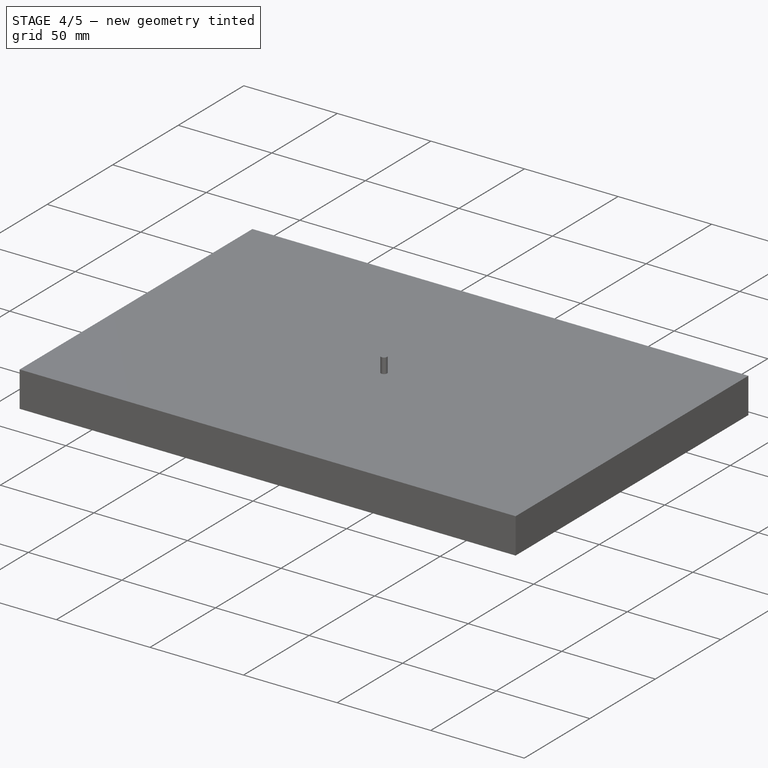
[diagram: stage 4 of 5 — iso view after this stage's code; geometry added in this stage tinted green]
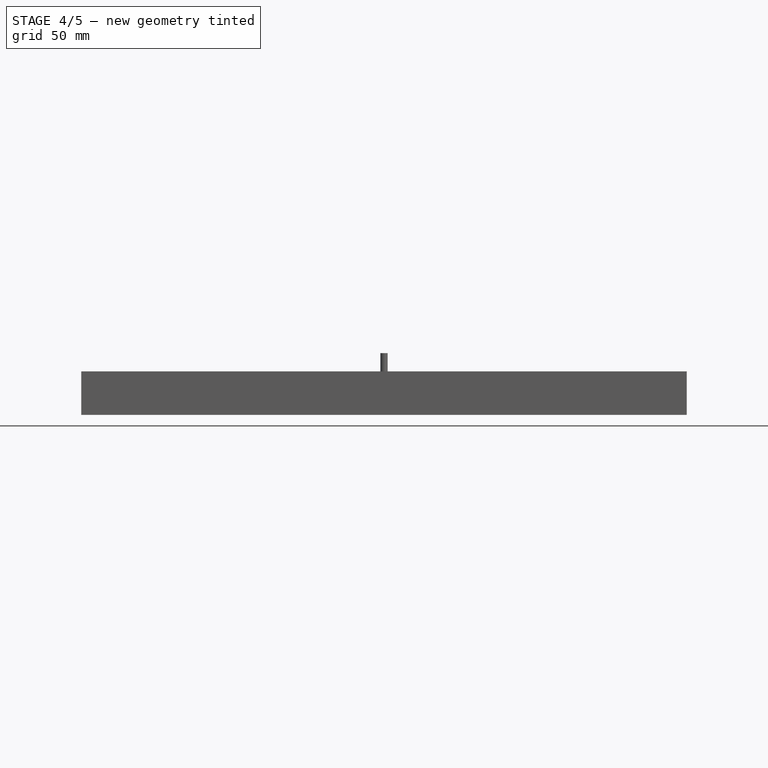
[diagram: stage 4 of 5 — front view after this stage's code; geometry added in this stage tinted green]
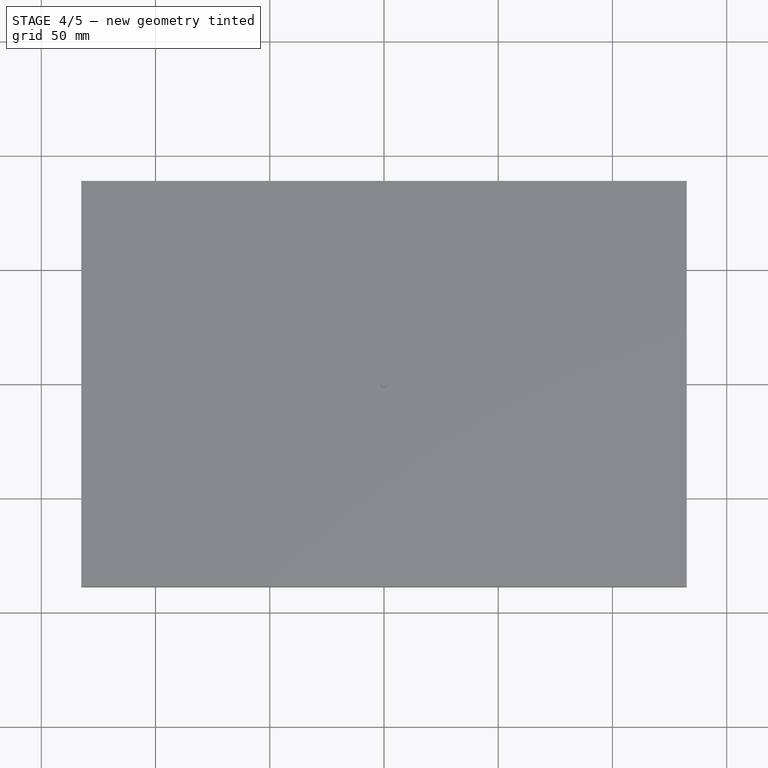
[diagram: stage 4 of 5 — top view after this stage's code; geometry added in this stage tinted green]
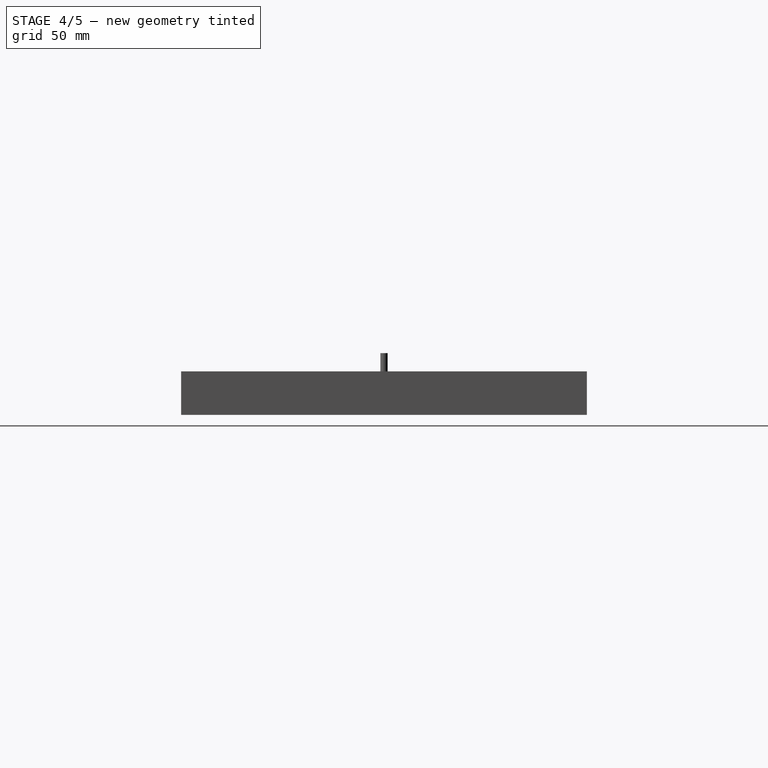
[diagram: stage 4 of 5 — right view after this stage's code; geometry added in this stage tinted green]
FEATURE [Part::FeaturePython] ToolBit012  label="1.6mm_Endmill002"  # Path/CAM toolbit (typed FeaturePython)
  BitPropertyNames = Chipload | CuttingEdgeHeight | Diameter | Flutes | Length | Material | ShankDiameter | SpindleDirection
  BitShape = /private/var/folders/4z/cpn_82wx3qz0m4lfqxz9fps80000gn/T/AppTranslocation/F0985DD4-02AB-45FC-913C-AB543CA37541/d/FreeCAD.app/Contents/Resources/Mod/CAM/Tools/Shape/endmill.fcstd
  Chipload = 0
  CuttingEdgeHeight = 10
  Diameter = 1.6
  File = <userpath>/Library/Application Support/FreeCAD/Macro/Bit/1.6mm_Endmill.fctb
  Flutes = 0
  Length = 27
  Material = 0
  ShankDiameter = 3.17
  ShapeName = endmill
  SpindleDirection = 0
FEATURE [App::DocumentObjectGroup] Model001
  Group = -> [Clone001]
FEATURE [Part::FeaturePython] ToolBit013  label="0.8mm_Endmill006"  # Path/CAM toolbit (typed FeaturePython)
  BitPropertyNames = Chipload | CuttingEdgeHeight | Diameter | Flutes | Length | Material | ShankDiameter | SpindleDirection
  BitShape = /private/var/folders/4z/cpn_82wx3qz0m4lfqxz9fps80000gn/T/AppTranslocation/F0985DD4-02AB-45FC-913C-AB543CA37541/d/FreeCAD.app/Contents/Resources/Mod/CAM/Tools/Shape/endmill.fcstd
  Chipload = 0
  CuttingEdgeHeight = 10
  Diameter = 0.8
  Flutes = 0
  Length = 27
  Material = 0
  ShankDiameter = 3.17
  ShapeName = endmill
  SpindleDirection = 0
FEATURE [Path::FeaturePython] __8mm_Endmill004  label="0.8mm_Endmill005"  # Path/CAM operation (typed FeaturePython)
  HorizFeed = 3.33333
  HorizRapid = 0
  SpindleDir = 0
  SpindleSpeed = 1000
  Tool = -> ToolBit013
  ToolNumber = 2
  VertFeed = 3.33333
  VertRapid = 0
  expr: HorizRapid = SetupSheet001.HorizRapid
  expr: VertRapid = SetupSheet001.VertRapid
FEATURE [Part::FeaturePython] ToolBit014  label="1.0mm_Endmill005"  # Path/CAM toolbit (typed FeaturePython)
  BitPropertyNames = Chipload | CuttingEdgeHeight | Diameter | Flutes | Length | Material | ShankDiameter | SpindleDirection
  BitShape = /private/var/folders/4z/cpn_82wx3qz0m4lfqxz9fps80000gn/T/AppTranslocation/F0985DD4-02AB-45FC-913C-AB543CA37541/d/FreeCAD.app/Contents/Resources/Mod/CAM/Tools/Shape/endmill.fcstd
  Chipload = 0
  CuttingEdgeHeight = 10
  Diameter = 1
  Flutes = 0
  Length = 27
  Material = 0
  ShankDiameter = 3.17
  ShapeName = endmill
  SpindleDirection = 0
FEATURE [Path::FeaturePython] __0mm_Endmill004  label="1.0mm_Endmill004"  # Path/CAM operation (typed FeaturePython)
  HorizFeed = 3.33333
  HorizRapid = 0
  SpindleDir = 0
  SpindleSpeed = 1000
  Tool = -> ToolBit014
  ToolNumber = 3
  VertFeed = 3.33333
  VertRapid = 0
  expr: HorizRapid = SetupSheet001.HorizRapid
  expr: VertRapid = SetupSheet001.VertRapid
FEATURE [Part::FeaturePython] ToolBit015  label="1.2mm_endmill005"  # Path/CAM toolbit (typed FeaturePython)
  BitPropertyNames = Chipload | CuttingEdgeHeight | Diameter | Flutes | Length | Material | ShankDiameter | SpindleDirection
  BitShape = /private/var/folders/4z/cpn_82wx3qz0m4lfqxz9fps80000gn/T/AppTranslocation/F0985DD4-02AB-45FC-913C-AB543CA37541/d/FreeCAD.app/Contents/Resources/Mod/CAM/Tools/Shape/endmill.fcstd
  Chipload = 0
  CuttingEdgeHeight = 10
  Diameter = 1.2
  Flutes = 0
  Length = 27
  Material = 0
  ShankDiameter = 3.13
  ShapeName = endmill
  SpindleDirection = 0
FEATURE [Path::FeaturePython] __2mm_endmill002  label="1.2mm_endmill004"  # Path/CAM operation (typed FeaturePython)
  HorizFeed = 3.33333
  HorizRapid = 0
  SpindleDir = 0
  SpindleSpeed = 1000
  Tool = -> ToolBit015
  ToolNumber = 4
  VertFeed = 3.33333
  VertRapid = 0
  expr: HorizRapid = SetupSheet001.HorizRapid
  expr: VertRapid = SetupSheet001.VertRapid
FEATURE [Part::FeaturePython] ToolBit016  label="1.4mm_Endmill005"  # Path/CAM toolbit (typed FeaturePython)
  BitPropertyNames = Chipload | CuttingEdgeHeight | Diameter | Flutes | Length | Material | ShankDiameter | SpindleDirection
  BitShape = /private/var/folders/4z/cpn_82wx3qz0m4lfqxz9fps80000gn/T/AppTranslocation/F0985DD4-02AB-45FC-913C-AB543CA37541/d/FreeCAD.app/Contents/Resources/Mod/CAM/Tools/Shape/endmill.fcstd
  Chipload = 0
  CuttingEdgeHeight = 10
  Diameter = 1.4
  Flutes = 0
  Length = 27
  Material = 0
  ShankDiameter = 3.17
  ShapeName = endmill
  SpindleDirection = 0
FEATURE [Path::FeaturePython] __6mm_Endmill003  label="1.6mm_Endmill004"  # Path/CAM operation (typed FeaturePython)
  HorizFeed = 8.33333
  HorizRapid = 0
  SpindleDir = 0
  SpindleSpeed = 1000
  Tool = -> ToolBit017
  ToolNumber = 14
  VertFeed = 8.33333
  VertRapid = 0
  expr: HorizRapid = SetupSheet001.HorizRapid
  expr: VertRapid = SetupSheet001.VertRapid
FEATURE [Part::FeaturePython] ToolBit018  label="1.8mm_Endmill003"  # Path/CAM toolbit (typed FeaturePython)
  BitPropertyNames = Chipload | CuttingEdgeHeight | Diameter | Flutes | Length | Material | ShankDiameter | SpindleDirection
  BitShape = /private/var/folders/4z/cpn_82wx3qz0m4lfqxz9fps80000gn/T/AppTranslocation/F0985DD4-02AB-45FC-913C-AB543CA37541/d/FreeCAD.app/Contents/Resources/Mod/CAM/Tools/Shape/endmill.fcstd
  Chipload = 0
  CuttingEdgeHeight = 10
  Diameter = 1.8
  Flutes = 0
  Length = 27
  Material = 0
  ShankDiameter = 3.17
  ShapeName = endmill
  SpindleDirection = 0
FEATURE [Path::FeaturePython] __8mm_Endmill005  label="1.8mm_Endmill002"  # Path/CAM operation (typed FeaturePython)
  HorizFeed = 3.33333
  HorizRapid = 0
  SpindleDir = 0
  SpindleSpeed = 1000
  Tool = -> ToolBit018
  ToolNumber = 7
  VertFeed = 3.33333
  VertRapid = 0
  expr: HorizRapid = SetupSheet001.HorizRapid
  expr: VertRapid = SetupSheet001.VertRapid
FEATURE [Part::FeaturePython] ToolBit019  label="2.0mm_Endmill003"  # Path/CAM toolbit (typed FeaturePython)
  BitPropertyNames = Chipload | CuttingEdgeHeight | Diameter | Flutes | Length | Material | ShankDiameter | SpindleDirection
  BitShape = /private/var/folders/4z/cpn_82wx3qz0m4lfqxz9fps80000gn/T/AppTranslocation/F0985DD4-02AB-45FC-913C-AB543CA37541/d/FreeCAD.app/Contents/Resources/Mod/CAM/Tools/Shape/endmill.fcstd
  Chipload = 0
  CuttingEdgeHeight = 10
  Diameter = 2
  Flutes = 0
  Length = 27
  Material = 0
  ShankDiameter = 3.17
  ShapeName = endmill
  SpindleDirection = 0
FEATURE [Path::FeaturePython] __0mm_Endmill005  label="2.0mm_Endmill002"  # Path/CAM operation (typed FeaturePython)
  HorizFeed = 3.33333
  HorizRapid = 0
  SpindleDir = 0
  SpindleSpeed = 1000
  Tool = -> ToolBit019
  ToolNumber = 8
  VertFeed = 3.33333
  VertRapid = 0
  expr: HorizRapid = SetupSheet001.HorizRapid
  expr: VertRapid = SetupSheet001.VertRapid
FEATURE [Part::FeaturePython] ToolBit020  label="2.2mm_Endmill003"  # Path/CAM toolbit (typed FeaturePython)
  BitPropertyNames = Chipload | CuttingEdgeHeight | Diameter | Flutes | Length | Material | ShankDiameter | SpindleDirection
  BitShape = /private/var/folders/4z/cpn_82wx3qz0m4lfqxz9fps80000gn/T/AppTranslocation/F0985DD4-02AB-45FC-913C-AB543CA37541/d/FreeCAD.app/Contents/Resources/Mod/CAM/Tools/Shape/endmill.fcstd
  Chipload = 0
  CuttingEdgeHeight = 10
  Diameter = 2.2
  Flutes = 0
  Length = 27
  Material = 0
  ShankDiameter = 3.17
  ShapeName = endmill
  SpindleDirection = 0
FEATURE [Path::FeaturePython] __2mm_Endmill001  label="2.2mm_Endmill002"  # Path/CAM operation (typed FeaturePython)
  HorizFeed = 3.33333
  HorizRapid = 0
  SpindleDir = 0
  SpindleSpeed = 1000
  Tool = -> ToolBit020
  ToolNumber = 9
  VertFeed = 3.33333
  VertRapid = 0
  expr: HorizRapid = SetupSheet001.HorizRapid
  expr: VertRapid = SetupSheet001.VertRapid
FEATURE [Part::FeaturePython] ToolBit021  label="2.4mm_Endmill003"  # Path/CAM toolbit (typed FeaturePython)
  BitPropertyNames = Chipload | CuttingEdgeHeight | Diameter | Flutes | Length | Material | ShankDiameter | SpindleDirection
  BitShape = /private/var/folders/4z/cpn_82wx3qz0m4lfqxz9fps80000gn/T/AppTranslocation/F0985DD4-02AB-45FC-913C-AB543CA37541/d/FreeCAD.app/Contents/Resources/Mod/CAM/Tools/Shape/endmill.fcstd
  Chipload = 0
  CuttingEdgeHeight = 10
  Diameter = 2.4
  Flutes = 0
  Length = 27
  Material = 0
  ShankDiameter = 3.17
  ShapeName = endmill
  SpindleDirection = 0
FEATURE [Path::FeaturePython] __4mm_Endmill004  label="2.4mm_Endmill002"  # Path/CAM operation (typed FeaturePython)
  HorizFeed = 3.33333
  HorizRapid = 0
  SpindleDir = 0
  SpindleSpeed = 1000
  Tool = -> ToolBit021
  ToolNumber = 10
  VertFeed = 3.33333
  VertRapid = 0
  expr: HorizRapid = SetupSheet001.HorizRapid
  expr: VertRapid = SetupSheet001.VertRapid
FEATURE [Part::FeaturePython] ToolBit022  label="2.6mm_Endmill003"  # Path/CAM toolbit (typed FeaturePython)
  BitPropertyNames = Chipload | CuttingEdgeHeight | Diameter | Flutes | Length | Material | ShankDiameter | SpindleDirection
  BitShape = /private/var/folders/4z/cpn_82wx3qz0m4lfqxz9fps80000gn/T/AppTranslocation/F0985DD4-02AB-45FC-913C-AB543CA37541/d/FreeCAD.app/Contents/Resources/Mod/CAM/Tools/Shape/endmill.fcstd
  Chipload = 0
  CuttingEdgeHeight = 10
  Diameter = 2.6
  Flutes = 0
  Length = 27
  Material = 0
  ShankDiameter = 3.17
  ShapeName = endmill
  SpindleDirection = 0
FEATURE [Path::FeaturePython] __6mm_Endmill004  label="2.6mm_Endmill002"  # Path/CAM operation (typed FeaturePython)
  HorizFeed = 3.33333
  HorizRapid = 0
  SpindleDir = 0
  SpindleSpeed = 1000
  Tool = -> ToolBit022
  ToolNumber = 11
  VertFeed = 3.33333
  VertRapid = 0
  expr: HorizRapid = SetupSheet001.HorizRapid
  expr: VertRapid = SetupSheet001.VertRapid
FEATURE [Part::FeaturePython] ToolBit023  label="2.8mm_Endmill003"  # Path/CAM toolbit (typed FeaturePython)
  BitPropertyNames = Chipload | CuttingEdgeHeight | Diameter | Flutes | Length | Material | ShankDiameter | SpindleDirection
  BitShape = /private/var/folders/4z/cpn_82wx3qz0m4lfqxz9fps80000gn/T/AppTranslocation/F0985DD4-02AB-45FC-913C-AB543CA37541/d/FreeCAD.app/Contents/Resources/Mod/CAM/Tools/Shape/endmill.fcstd
  Chipload = 0
  CuttingEdgeHeight = 10
  Diameter = 2.8
  Flutes = 0
  Length = 27
  Material = 0
  ShankDiameter = 3.17
  ShapeName = endmill
  SpindleDirection = 0
FEATURE [Path::FeaturePython] __8mm_Endmill006  label="2.8mm_Endmill002"  # Path/CAM operation (typed FeaturePython)
  HorizFeed = 3.33333
  HorizRapid = 0
  SpindleDir = 0
  SpindleSpeed = 1000
  Tool = -> ToolBit023
  ToolNumber = 12
  VertFeed = 3.33333
  VertRapid = 0
  expr: HorizRapid = SetupSheet001.HorizRapid
  expr: VertRapid = SetupSheet001.VertRapid
FEATURE [Part::FeaturePython] ToolBit024  label="3.0mm_Endmill003"  # Path/CAM toolbit (typed FeaturePython)
  BitPropertyNames = Chipload | CuttingEdgeHeight | Diameter | Flutes | Length | Material | ShankDiameter | SpindleDirection
  BitShape = /private/var/folders/4z/cpn_82wx3qz0m4lfqxz9fps80000gn/T/AppTranslocation/F0985DD4-02AB-45FC-913C-AB543CA37541/d/FreeCAD.app/Contents/Resources/Mod/CAM/Tools/Shape/endmill.fcstd
  Chipload = 0
  CuttingEdgeHeight = 10
  Diameter = 3
  Flutes = 0
  Length = 27
  Material = 0
  ShankDiameter = 3.17
  ShapeName = endmill
  SpindleDirection = 0
FEATURE [Path::FeaturePython] __0mm_Endmill006  label="3.0mm_Endmill002"  # Path/CAM operation (typed FeaturePython)
  HorizFeed = 3.33333
  HorizRapid = 0
  SpindleDir = 0
  SpindleSpeed = 1000
  Tool = -> ToolBit024
  ToolNumber = 13
  VertFeed = 3.33333
  VertRapid = 0
  expr: HorizRapid = SetupSheet001.HorizRapid
  expr: VertRapid = SetupSheet001.VertRapid
FEATURE [Part::FeaturePython] ToolBit025  label="3.175mm_endmill011"  # Path/CAM toolbit (typed FeaturePython)
  BitPropertyNames = Chipload | CuttingEdgeHeight | Diameter | Flutes | Length | Material | ShankDiameter | SpindleDirection
  BitShape = /private/var/folders/4z/cpn_82wx3qz0m4lfqxz9fps80000gn/T/AppTranslocation/F0985DD4-02AB-45FC-913C-AB543CA37541/d/FreeCAD.app/Contents/Resources/Mod/CAM/Tools/Shape/endmill.fcstd
  Chipload = 0
  CuttingEdgeHeight = 10
  Diameter = 3.17
  Flutes = 0
  Length = 27
  Material = 0
  ShankDiameter = 3.17
  ShapeName = endmill
  SpindleDirection = 0
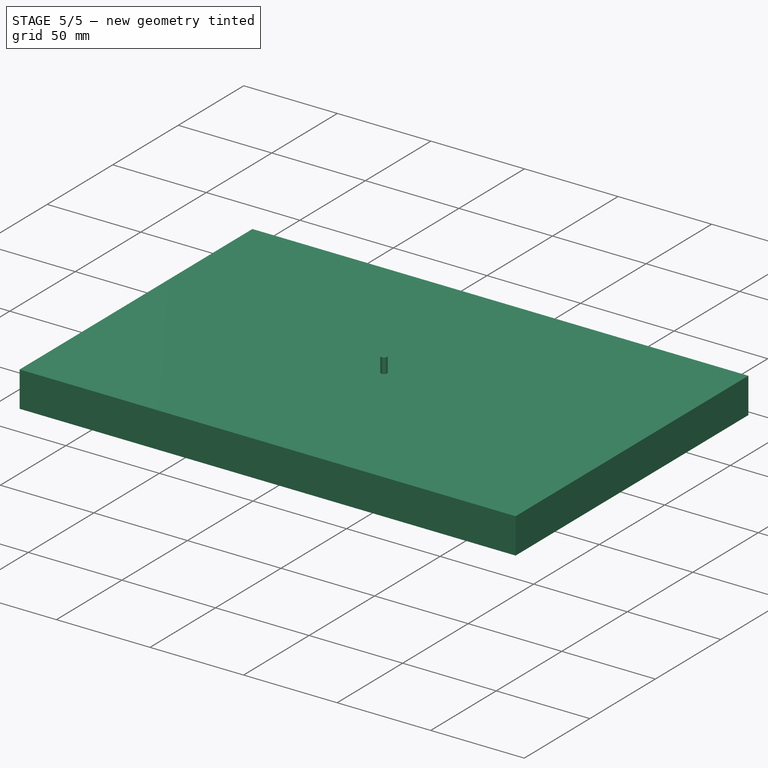
[diagram: stage 5 of 5 — iso view after this stage's code; geometry added in this stage tinted green]
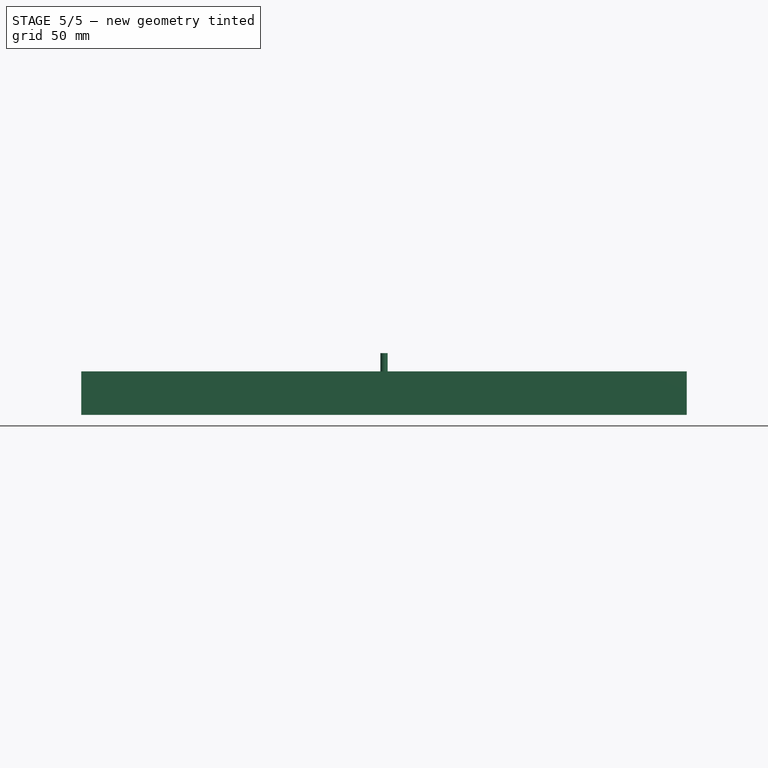
[diagram: stage 5 of 5 — front view after this stage's code; geometry added in this stage tinted green]
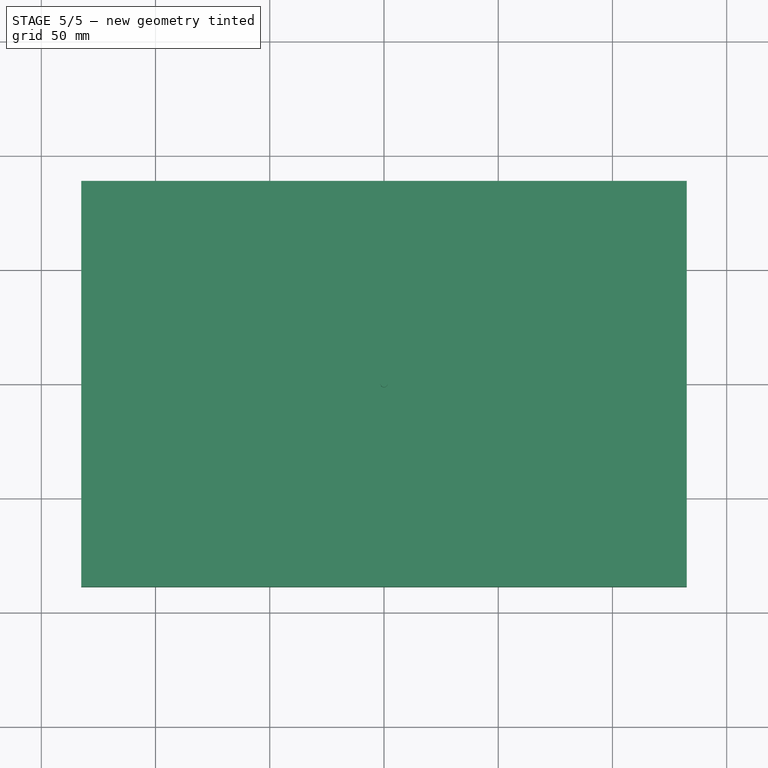
[diagram: stage 5 of 5 — top view after this stage's code; geometry added in this stage tinted green]
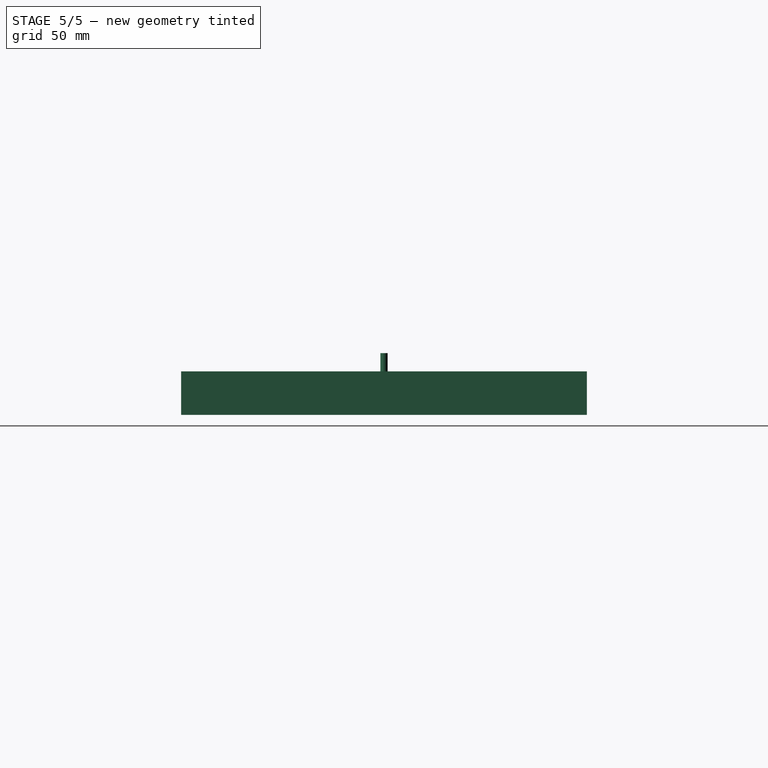
[diagram: stage 5 of 5 — right view after this stage's code; geometry added in this stage tinted green]
FEATURE [App::DocumentObjectGroup] Model
  Group = -> [Clone]
FEATURE [Part::FeaturePython] ToolBit  label="0.8mm_Endmill004"  # Path/CAM toolbit (typed FeaturePython)
  BitPropertyNames = Chipload | CuttingEdgeHeight | Diameter | Flutes | Length | Material | ShankDiameter | SpindleDirection
  BitShape = /private/var/folders/4z/cpn_82wx3qz0m4lfqxz9fps80000gn/T/AppTranslocation/F0985DD4-02AB-45FC-913C-AB543CA37541/d/FreeCAD.app/Contents/Resources/Mod/CAM/Tools/Shape/endmill.fcstd
  Chipload = 0
  CuttingEdgeHeight = 10
  Diameter = 0.8
  Flutes = 0
  Length = 27
  Material = 0
  ShankDiameter = 3.17
  ShapeName = endmill
  SpindleDirection = 0
FEATURE [Path::FeaturePython] __8mm_Endmill001  label="0.8mm_Endmill002"  # Path/CAM operation (typed FeaturePython)
  HorizFeed = 3.33333
  HorizRapid = 0
  SpindleDir = 0
  SpindleSpeed = 1000
  Tool = -> ToolBit
  ToolNumber = 2
  VertFeed = 3.33333
  VertRapid = 0
  expr: HorizRapid = SetupSheet.HorizRapid
  expr: VertRapid = SetupSheet.VertRapid
FEATURE [Part::FeaturePython] ToolBit001  label="1.0mm_Endmill003"  # Path/CAM toolbit (typed FeaturePython)
  BitPropertyNames = Chipload | CuttingEdgeHeight | Diameter | Flutes | Length | Material | ShankDiameter | SpindleDirection
  BitShape = /private/var/folders/4z/cpn_82wx3qz0m4lfqxz9fps80000gn/T/AppTranslocation/F0985DD4-02AB-45FC-913C-AB543CA37541/d/FreeCAD.app/Contents/Resources/Mod/CAM/Tools/Shape/endmill.fcstd
  Chipload = 0
  CuttingEdgeHeight = 10
  Diameter = 1
  Flutes = 0
  Length = 27
  Material = 0
  ShankDiameter = 3.17
  ShapeName = endmill
  SpindleDirection = 0
FEATURE [Path::FeaturePython] __0mm_Endmill001  label="1.0mm_Endmill002"  # Path/CAM operation (typed FeaturePython)
  HorizFeed = 3.33333
  HorizRapid = 0
  SpindleDir = 0
  SpindleSpeed = 1000
  Tool = -> ToolBit001
  ToolNumber = 3
  VertFeed = 3.33333
  VertRapid = 0
  expr: HorizRapid = SetupSheet.HorizRapid
  expr: VertRapid = SetupSheet.VertRapid
FEATURE [Part::FeaturePython] ToolBit002  label="1.2mm_endmill003"  # Path/CAM toolbit (typed FeaturePython)
  BitPropertyNames = Chipload | CuttingEdgeHeight | Diameter | Flutes | Length | Material | ShankDiameter | SpindleDirection
  BitShape = /private/var/folders/4z/cpn_82wx3qz0m4lfqxz9fps80000gn/T/AppTranslocation/F0985DD4-02AB-45FC-913C-AB543CA37541/d/FreeCAD.app/Contents/Resources/Mod/CAM/Tools/Shape/endmill.fcstd
  Chipload = 0
  CuttingEdgeHeight = 10
  Diameter = 1.2
  Flutes = 0
  Length = 27
  Material = 0
  ShankDiameter = 3.13
  ShapeName = endmill
  SpindleDirection = 0
FEATURE [Path::FeaturePython] __2mm_endmill001  label="1.2mm_endmill002"  # Path/CAM operation (typed FeaturePython)
  HorizFeed = 3.33333
  HorizRapid = 0
  SpindleDir = 0
  SpindleSpeed = 1000
  Tool = -> ToolBit002
  ToolNumber = 4
  VertFeed = 3.33333
  VertRapid = 0
  expr: HorizRapid = SetupSheet.HorizRapid
  expr: VertRapid = SetupSheet.VertRapid
FEATURE [Part::FeaturePython] ToolBit003  label="1.4mm_Endmill003"  # Path/CAM toolbit (typed FeaturePython)
  BitPropertyNames = Chipload | CuttingEdgeHeight | Diameter | Flutes | Length | Material | ShankDiameter | SpindleDirection
  BitShape = /private/var/folders/4z/cpn_82wx3qz0m4lfqxz9fps80000gn/T/AppTranslocation/F0985DD4-02AB-45FC-913C-AB543CA37541/d/FreeCAD.app/Contents/Resources/Mod/CAM/Tools/Shape/endmill.fcstd
  Chipload = 0
  CuttingEdgeHeight = 10
  Diameter = 1.4
  Flutes = 0
  Length = 27
  Material = 0
  ShankDiameter = 3.17
  ShapeName = endmill
  SpindleDirection = 0
FEATURE [Path::FeaturePython] __4mm_Endmill001  label="1.4mm_Endmill002"  # Path/CAM operation (typed FeaturePython)
  HorizFeed = 3.33333
  HorizRapid = 0
  SpindleDir = 0
  SpindleSpeed = 1000
  Tool = -> ToolBit003
  ToolNumber = 5
  VertFeed = 3.33333
  VertRapid = 0
  expr: HorizRapid = SetupSheet.HorizRapid
  expr: VertRapid = SetupSheet.VertRapid
FEATURE [Part::FeaturePython] ToolBit004  label="1.8mm_Endmill"  # Path/CAM toolbit (typed FeaturePython)
  BitPropertyNames = Chipload | CuttingEdgeHeight | Diameter | Flutes | Length | Material | ShankDiameter | SpindleDirection
  BitShape = /private/var/folders/4z/cpn_82wx3qz0m4lfqxz9fps80000gn/T/AppTranslocation/F0985DD4-02AB-45FC-913C-AB543CA37541/d/FreeCAD.app/Contents/Resources/Mod/CAM/Tools/Shape/endmill.fcstd
  Chipload = 0
  CuttingEdgeHeight = 10
  Diameter = 1.8
  Flutes = 0
  Length = 27
  Material = 0
  ShankDiameter = 3.17
  ShapeName = endmill
  SpindleDirection = 0
FEATURE [Path::FeaturePython] __8mm_Endmill002  label="1.8mm_Endmill001"  # Path/CAM operation (typed FeaturePython)
  HorizFeed = 3.33333
  HorizRapid = 0
  SpindleDir = 0
  SpindleSpeed = 1000
  Tool = -> ToolBit004
  ToolNumber = 7
  VertFeed = 3.33333
  VertRapid = 0
  expr: HorizRapid = SetupSheet.HorizRapid
  expr: VertRapid = SetupSheet.VertRapid
FEATURE [Part::FeaturePython] ToolBit005  label="2.0mm_Endmill"  # Path/CAM toolbit (typed FeaturePython)
  BitPropertyNames = Chipload | CuttingEdgeHeight | Diameter | Flutes | Length | Material | ShankDiameter | SpindleDirection
  BitShape = /private/var/folders/4z/cpn_82wx3qz0m4lfqxz9fps80000gn/T/AppTranslocation/F0985DD4-02AB-45FC-913C-AB543CA37541/d/FreeCAD.app/Contents/Resources/Mod/CAM/Tools/Shape/endmill.fcstd
  Chipload = 0
  CuttingEdgeHeight = 10
  Diameter = 2
  Flutes = 0
  Length = 27
  Material = 0
  ShankDiameter = 3.17
  ShapeName = endmill
  SpindleDirection = 0
FEATURE [Path::FeaturePython] __0mm_Endmill002  label="2.0mm_Endmill001"  # Path/CAM operation (typed FeaturePython)
  HorizFeed = 3.33333
  HorizRapid = 0
  SpindleDir = 0
  SpindleSpeed = 1000
  Tool = -> ToolBit005
  ToolNumber = 8
  VertFeed = 3.33333
  VertRapid = 0
  expr: HorizRapid = SetupSheet.HorizRapid
  expr: VertRapid = SetupSheet.VertRapid
FEATURE [Part::FeaturePython] ToolBit006  label="2.2mm_Endmill"  # Path/CAM toolbit (typed FeaturePython)
  BitPropertyNames = Chipload | CuttingEdgeHeight | Diameter | Flutes | Length | Material | ShankDiameter | SpindleDirection
  BitShape = /private/var/folders/4z/cpn_82wx3qz0m4lfqxz9fps80000gn/T/AppTranslocation/F0985DD4-02AB-45FC-913C-AB543CA37541/d/FreeCAD.app/Contents/Resources/Mod/CAM/Tools/Shape/endmill.fcstd
  Chipload = 0
  CuttingEdgeHeight = 10
  Diameter = 2.2
  Flutes = 0
  Length = 27
  Material = 0
  ShankDiameter = 3.17
  ShapeName = endmill
  SpindleDirection = 0
FEATURE [Path::FeaturePython] __2mm_Endmill  label="2.2mm_Endmill001"  # Path/CAM operation (typed FeaturePython)
  HorizFeed = 3.33333
  HorizRapid = 0
  SpindleDir = 0
  SpindleSpeed = 1000
  Tool = -> ToolBit006
  ToolNumber = 9
  VertFeed = 3.33333
  VertRapid = 0
  expr: HorizRapid = SetupSheet.HorizRapid
  expr: VertRapid = SetupSheet.VertRapid
FEATURE [Part::FeaturePython] ToolBit007  label="2.4mm_Endmill"  # Path/CAM toolbit (typed FeaturePython)
  BitPropertyNames = Chipload | CuttingEdgeHeight | Diameter | Flutes | Length | Material | ShankDiameter | SpindleDirection
  BitShape = /private/var/folders/4z/cpn_82wx3qz0m4lfqxz9fps80000gn/T/AppTranslocation/F0985DD4-02AB-45FC-913C-AB543CA37541/d/FreeCAD.app/Contents/Resources/Mod/CAM/Tools/Shape/endmill.fcstd
  Chipload = 0
  CuttingEdgeHeight = 10
  Diameter = 2.4
  Flutes = 0
  Length = 27
  Material = 0
  ShankDiameter = 3.17
  ShapeName = endmill
  SpindleDirection = 0
FEATURE [Path::FeaturePython] __4mm_Endmill002  label="2.4mm_Endmill001"  # Path/CAM operation (typed FeaturePython)
  HorizFeed = 3.33333
  HorizRapid = 0
  SpindleDir = 0
  SpindleSpeed = 1000
  Tool = -> ToolBit007
  ToolNumber = 10
  VertFeed = 3.33333
  VertRapid = 0
  expr: HorizRapid = SetupSheet.HorizRapid
  expr: VertRapid = SetupSheet.VertRapid
FEATURE [Part::FeaturePython] ToolBit008  label="2.6mm_Endmill"  # Path/CAM toolbit (typed FeaturePython)
  BitPropertyNames = Chipload | CuttingEdgeHeight | Diameter | Flutes | Length | Material | ShankDiameter | SpindleDirection
  BitShape = /private/var/folders/4z/cpn_82wx3qz0m4lfqxz9fps80000gn/T/AppTranslocation/F0985DD4-02AB-45FC-913C-AB543CA37541/d/FreeCAD.app/Contents/Resources/Mod/CAM/Tools/Shape/endmill.fcstd
  Chipload = 0
  CuttingEdgeHeight = 10
  Diameter = 2.6
  Flutes = 0
  Length = 27
  Material = 0
  ShankDiameter = 3.17
  ShapeName = endmill
  SpindleDirection = 0
FEATURE [Path::FeaturePython] __6mm_Endmill  label="2.6mm_Endmill001"  # Path/CAM operation (typed FeaturePython)
  HorizFeed = 3.33333
  HorizRapid = 0
  SpindleDir = 0
  SpindleSpeed = 1000
  Tool = -> ToolBit008
  ToolNumber = 11
  VertFeed = 3.33333
  VertRapid = 0
  expr: HorizRapid = SetupSheet.HorizRapid
  expr: VertRapid = SetupSheet.VertRapid
FEATURE [Part::FeaturePython] ToolBit009  label="2.8mm_Endmill"  # Path/CAM toolbit (typed FeaturePython)
  BitPropertyNames = Chipload | CuttingEdgeHeight | Diameter | Flutes | Length | Material | ShankDiameter | SpindleDirection
  BitShape = /private/var/folders/4z/cpn_82wx3qz0m4lfqxz9fps80000gn/T/AppTranslocation/F0985DD4-02AB-45FC-913C-AB543CA37541/d/FreeCAD.app/Contents/Resources/Mod/CAM/Tools/Shape/endmill.fcstd
  Chipload = 0
  CuttingEdgeHeight = 10
  Diameter = 2.8
  Flutes = 0
  Length = 27
  Material = 0
  ShankDiameter = 3.17
  ShapeName = endmill
  SpindleDirection = 0
FEATURE [Path::FeaturePython] __8mm_Endmill003  label="2.8mm_Endmill001"  # Path/CAM operation (typed FeaturePython)
  HorizFeed = 3.33333
  HorizRapid = 0
  SpindleDir = 0
  SpindleSpeed = 1000
  Tool = -> ToolBit009
  ToolNumber = 12
  VertFeed = 3.33333
  VertRapid = 0
  expr: HorizRapid = SetupSheet.HorizRapid
  expr: VertRapid = SetupSheet.VertRapid
FEATURE [Part::FeaturePython] ToolBit010  label="3.0mm_Endmill"  # Path/CAM toolbit (typed FeaturePython)
  BitPropertyNames = Chipload | CuttingEdgeHeight | Diameter | Flutes | Length | Material | ShankDiameter | SpindleDirection
  BitShape = /private/var/folders/4z/cpn_82wx3qz0m4lfqxz9fps80000gn/T/AppTranslocation/F0985DD4-02AB-45FC-913C-AB543CA37541/d/FreeCAD.app/Contents/Resources/Mod/CAM/Tools/Shape/endmill.fcstd
  Chipload = 0
  CuttingEdgeHeight = 10
  Diameter = 3
  Flutes = 0
  Length = 27
  Material = 0
  ShankDiameter = 3.17
  ShapeName = endmill
  SpindleDirection = 0
FEATURE [Path::FeaturePython] __0mm_Endmill003  label="3.0mm_Endmill001"  # Path/CAM operation (typed FeaturePython)
  HorizFeed = 3.33333
  HorizRapid = 0
  SpindleDir = 0
  SpindleSpeed = 1000
  Tool = -> ToolBit010
  ToolNumber = 13
  VertFeed = 3.33333
  VertRapid = 0
  expr: HorizRapid = SetupSheet.HorizRapid
  expr: VertRapid = SetupSheet.VertRapid
FEATURE [Part::FeaturePython] ToolBit011  label="3.175mm_endmill009"  # Path/CAM toolbit (typed FeaturePython)
  BitPropertyNames = Chipload | CuttingEdgeHeight | Diameter | Flutes | Length | Material | ShankDiameter | SpindleDirection
  BitShape = /private/var/folders/4z/cpn_82wx3qz0m4lfqxz9fps80000gn/T/AppTranslocation/F0985DD4-02AB-45FC-913C-AB543CA37541/d/FreeCAD.app/Contents/Resources/Mod/CAM/Tools/Shape/endmill.fcstd
  Chipload = 0
  CuttingEdgeHeight = 10
  Diameter = 3.17
  Flutes = 0
  Length = 27
  Material = 0
  ShankDiameter = 3.17
  ShapeName = endmill
  SpindleDirection = 0
FEATURE [Path::FeaturePython] __175mm_endmill007  label="3.175mm_endmill008"  # Path/CAM operation (typed FeaturePython)
  HorizFeed = 3.33333
  HorizRapid = 0
  SpindleDir = 0
  SpindleSpeed = 1000
  Tool = -> ToolBit011
  ToolNumber = 6
  VertFeed = 3.33333
  VertRapid = 0
  expr: HorizRapid = SetupSheet.HorizRapid
  expr: VertRapid = SetupSheet.VertRapid
FEATURE [Part::FeaturePython] Stock  # WARN: FeaturePython — macro-defined, semantics opaque (R4)
  Base = -> Model
  ExtXneg = 1
  ExtXpos = 1
  ExtYneg = 1
  ExtYpos = 1
  ExtZneg = 0
  ExtZpos = 0
  Placement = pos=(-131.495,-87.8021,0) rot=(0,0,1;0rad)
  StockType = FromBase
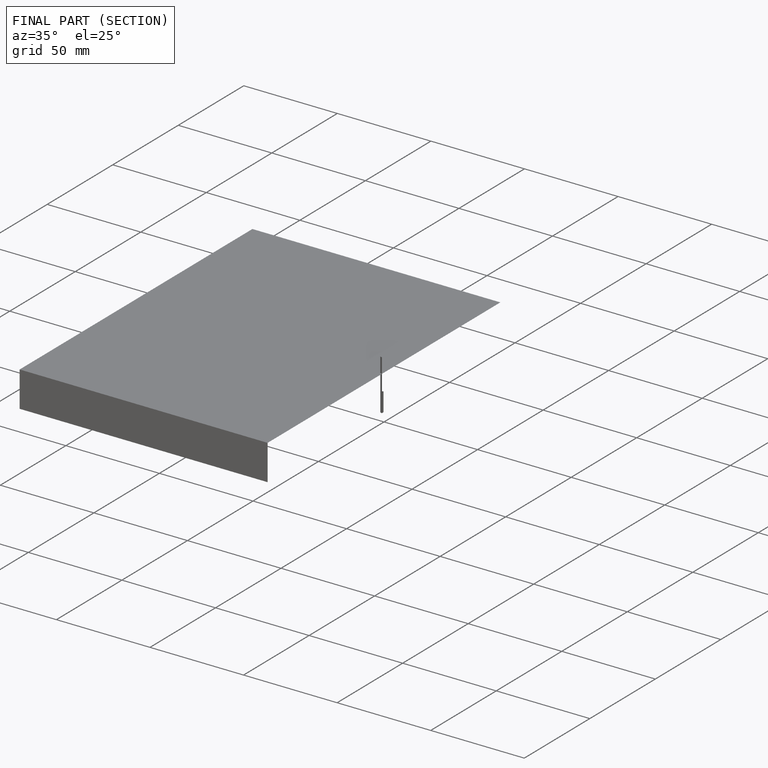
[diagram: finished part — half-section view (interior)]
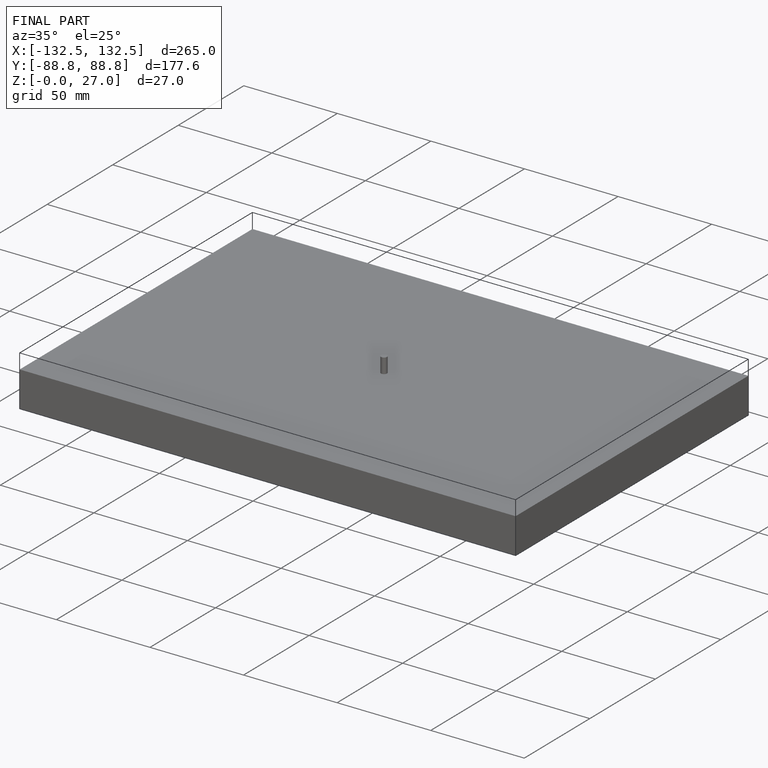
[diagram: finished part — iso view with bounding-box wireframe]
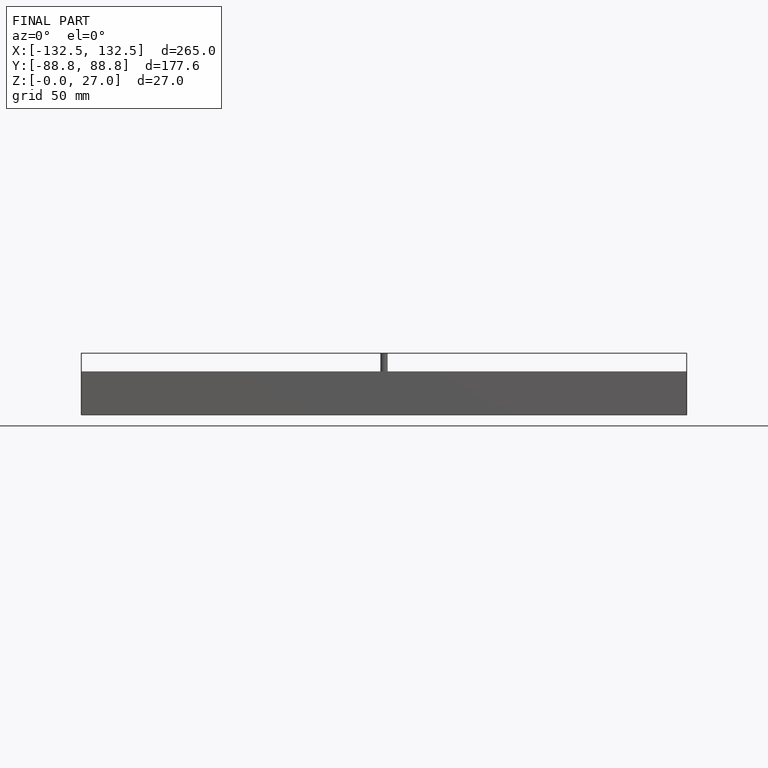
[diagram: finished part — front view with bounding-box wireframe]
